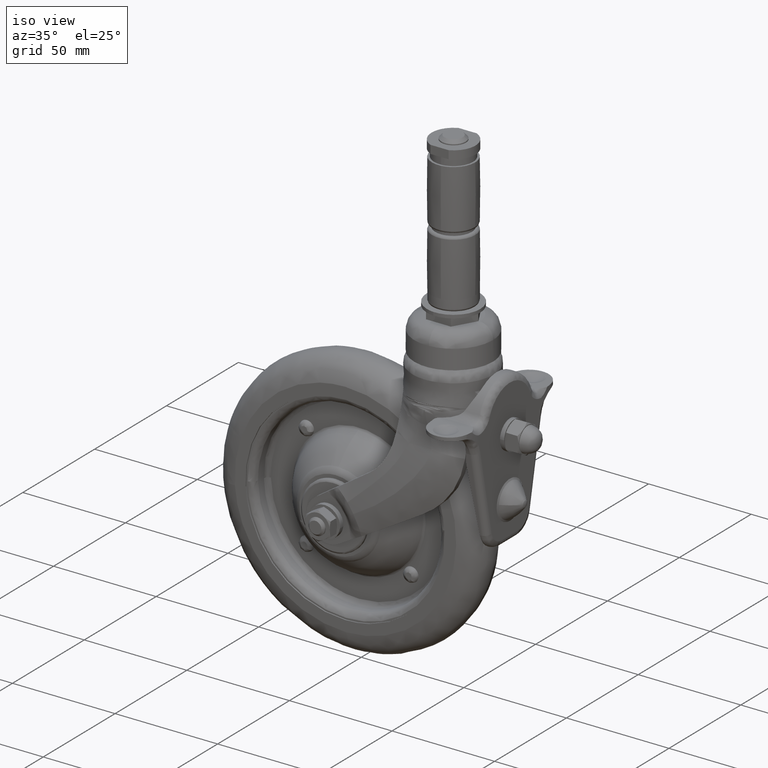
[diagram: clean part render]
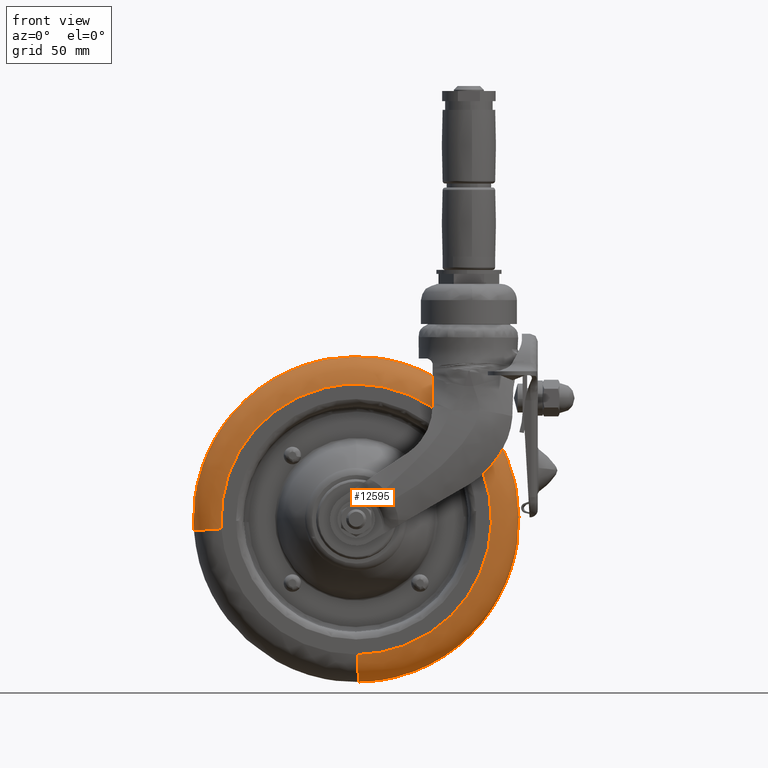
[diagram: tour spotlight — one face highlighted and labeled with its STEP entity id]
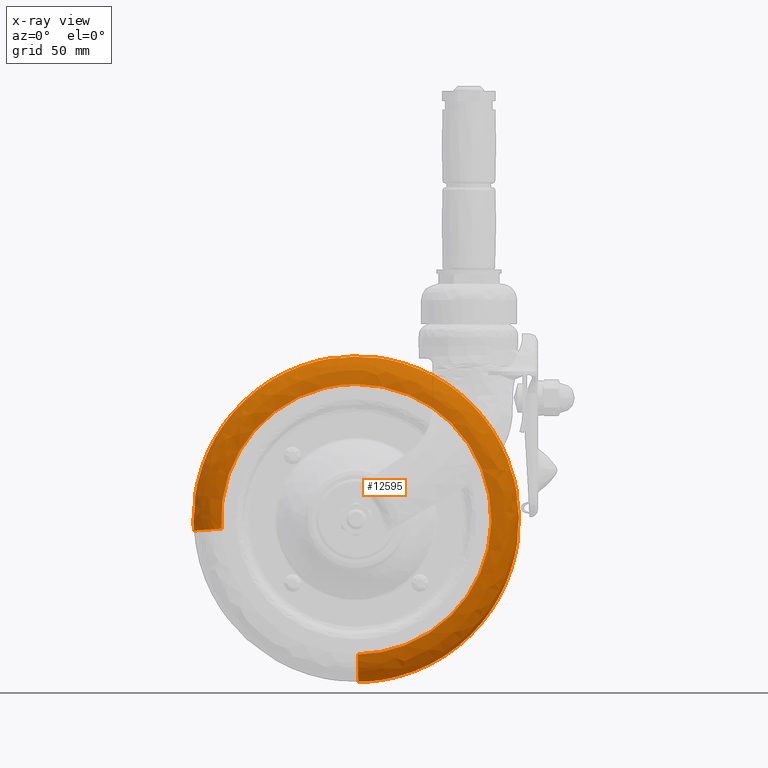
[diagram: x-ray of the same camera — body ghosted, this tour face saturated]
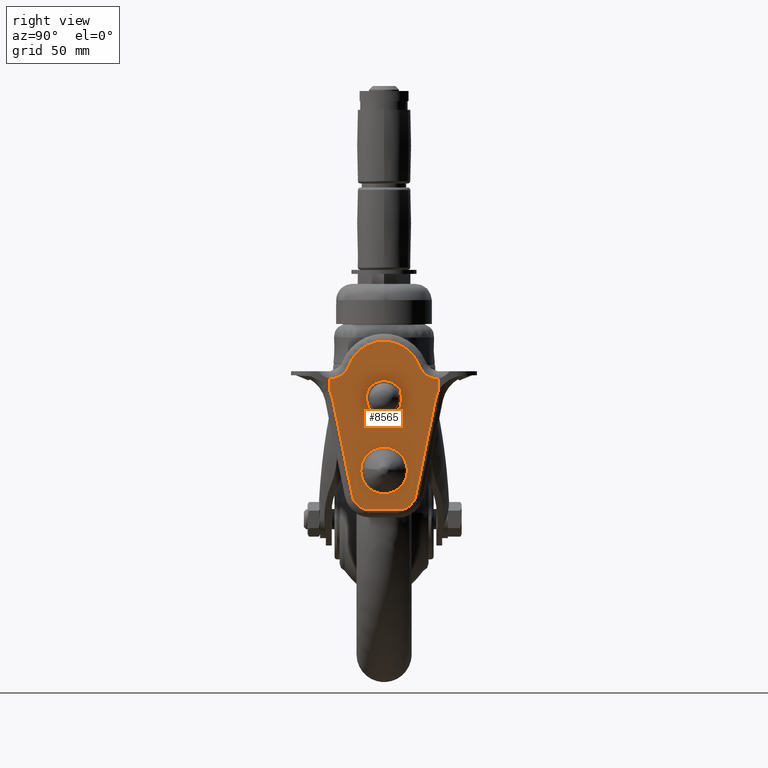
[diagram: tour spotlight — one face highlighted and labeled with its STEP entity id]
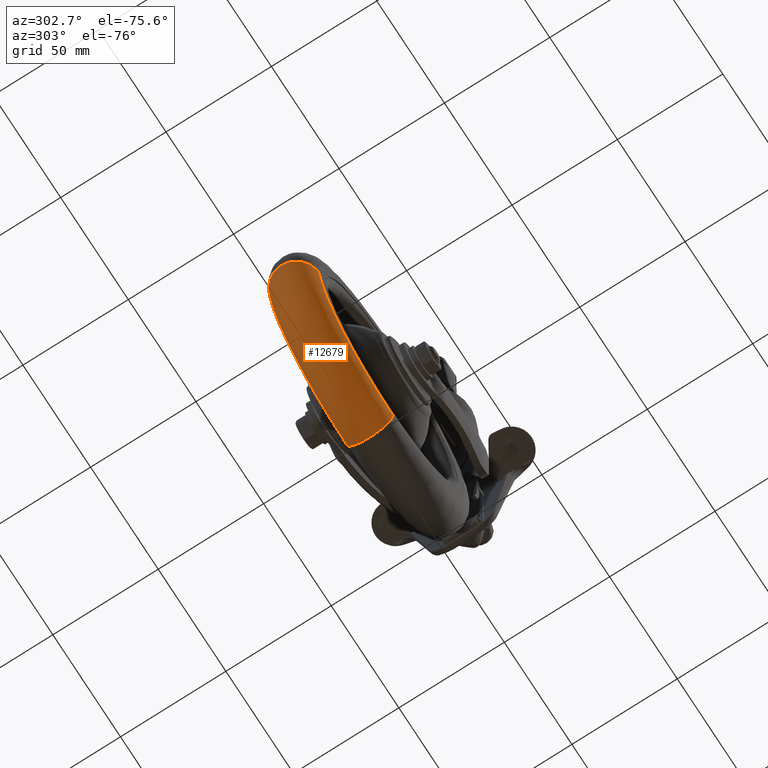
[diagram: tour spotlight — one face highlighted and labeled with its STEP entity id]
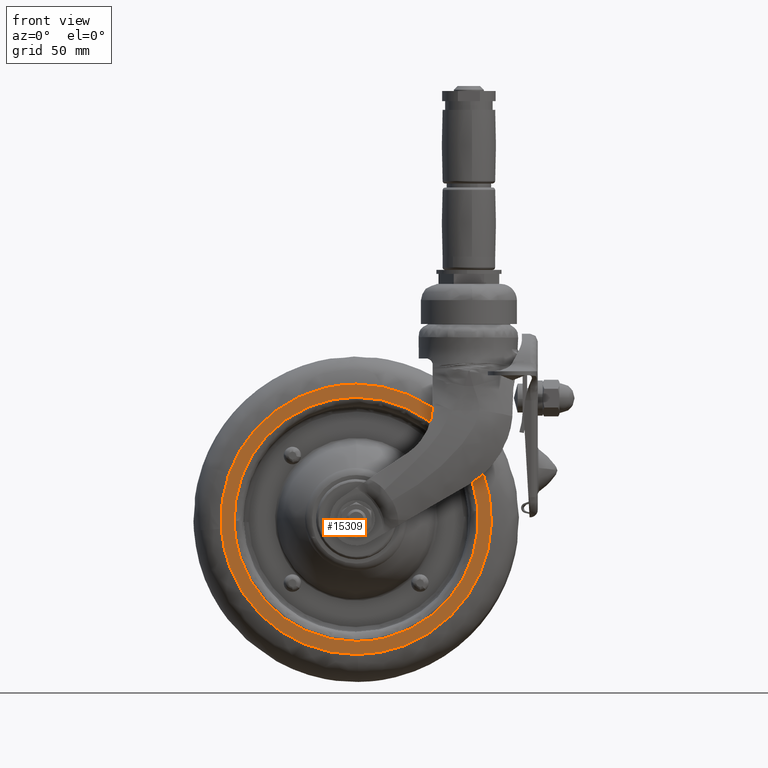
[diagram: tour spotlight — one face highlighted and labeled with its STEP entity id]
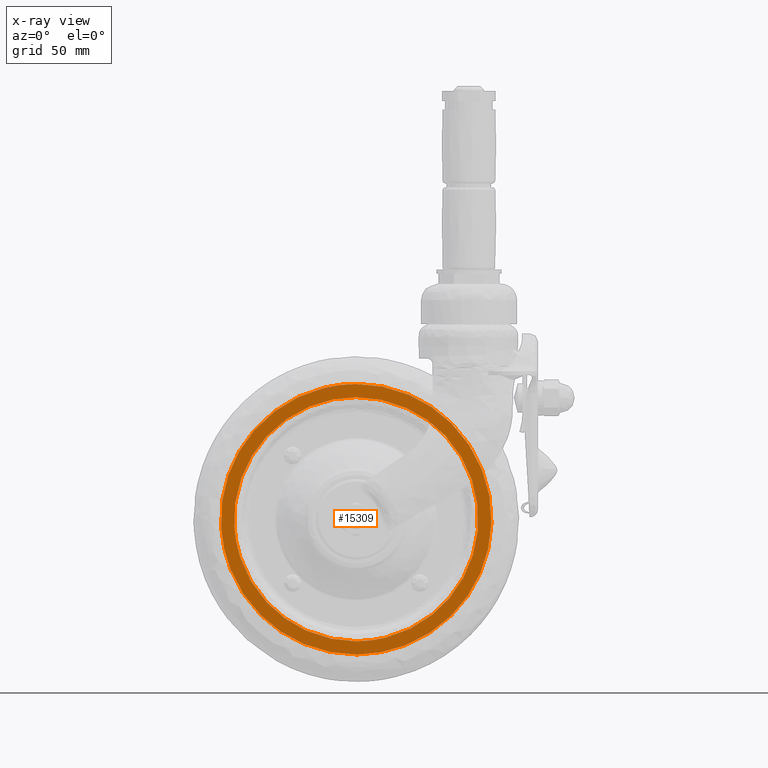
[diagram: x-ray of the same camera — body ghosted, this tour face saturated]
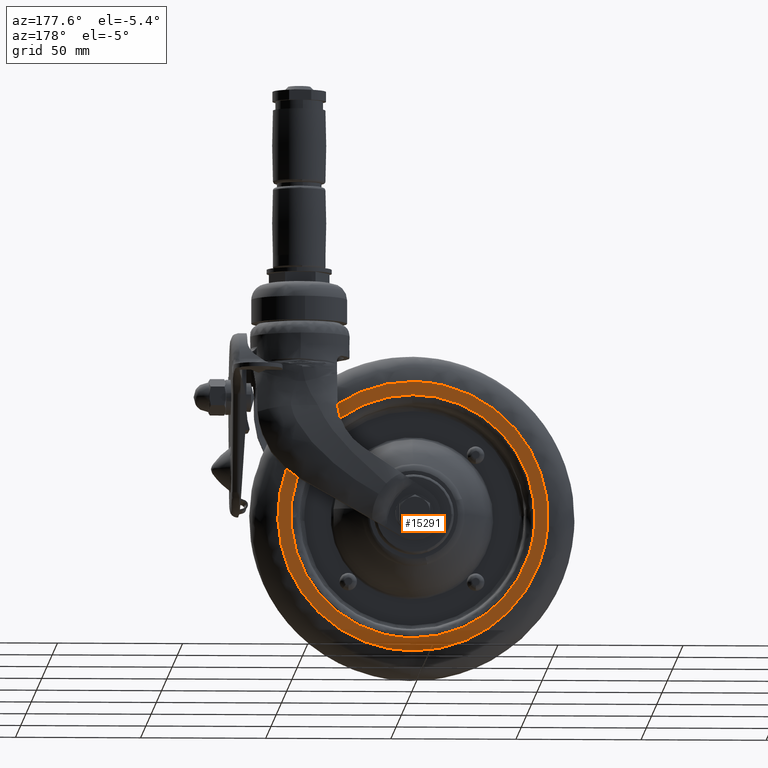
[diagram: tour spotlight — one face highlighted and labeled with its STEP entity id]
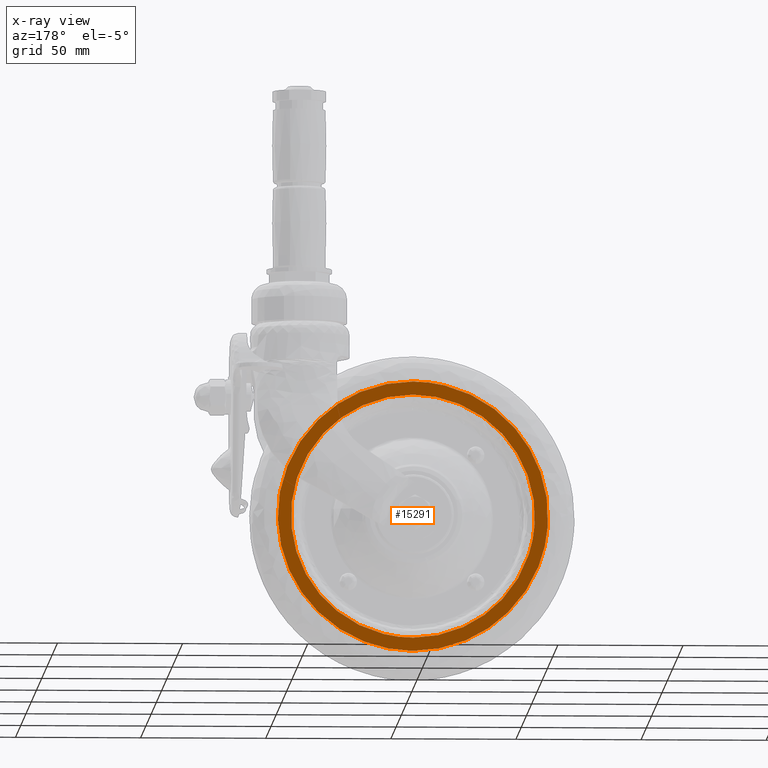
[diagram: x-ray of the same camera — body ghosted, this tour face saturated]
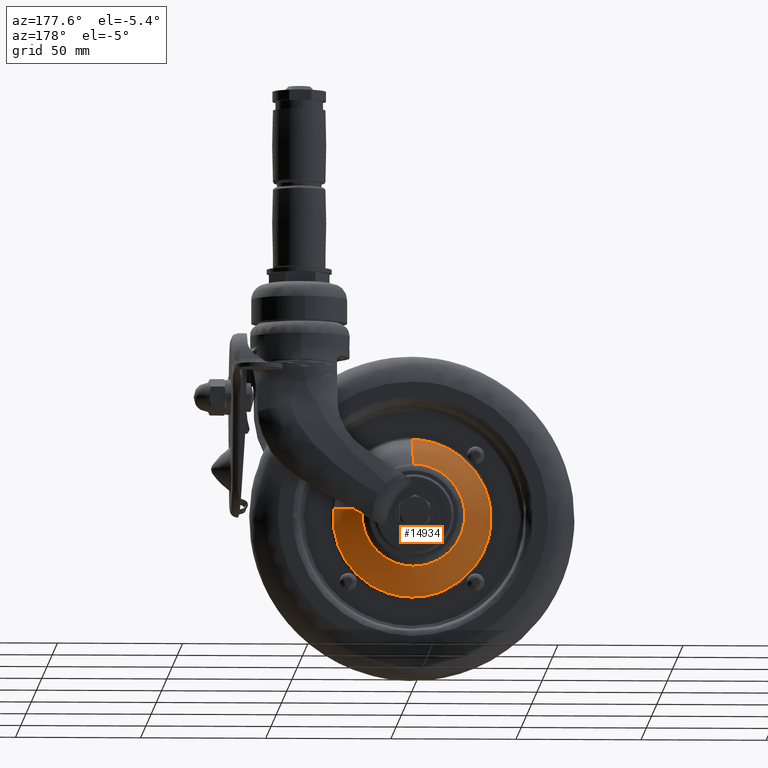
[diagram: tour spotlight — one face highlighted and labeled with its STEP entity id]
A machine part: a face-by-face anatomy tour. The part has 485 B-rep faces; the first image is the clean iso view, then the 6 largest visible faces are spotlighted one at a time (largest first), each with its STEP entity span.

Face 1 — front view, entity #12595. An x-ray twin of the same camera follows (body ghosted, this face saturated) — the face is partly hidden behind the body. In plain terms, the highlighted face is a freeform B-spline surface patch.
Definition (entity closure, byte-faithful):
#12438=CARTESIAN_POINT('',(-52.314848303068587,-10.889179296864375,-3.656983875090186));
#12439=CARTESIAN_POINT('',(-52.419509509431080,-10.889179296864370,-2.159756837430519));
#12440=CARTESIAN_POINT('',(-52.438369635726986,-10.889179296864366,-0.658994675709848));
#12441=CARTESIAN_POINT('',(-53.097364311436813,-10.889179296864368,51.779374960017122));
#12442=CARTESIAN_POINT('',(-0.658994675709851,-10.889179296864366,52.438369635726986));
#12443=CARTESIAN_POINT('',(51.779374960017122,-10.889179296864368,53.097364311436813));
#12444=CARTESIAN_POINT('',(52.438369635726986,-10.889179296864366,0.658994675709855));
#12445=CARTESIAN_POINT('',(53.097364311436813,-10.889179296864368,-51.779374960017108));
#12446=CARTESIAN_POINT('',(0.658994675709812,-10.889179296864366,-52.438369635726986));
#12447=CARTESIAN_POINT('',(-64.841769049782854,-12.685289056182535,-4.532657773824969));
#12448=CARTESIAN_POINT('',(-64.971491642728424,-12.685289056182540,-2.676915992283299));
#12449=CARTESIAN_POINT('',(-64.994867873248012,-12.685289056182539,-0.816792592417938));
#12450=CARTESIAN_POINT('',(-65.811660465665938,-12.685289056182540,64.178075280830072));
#12451=CARTESIAN_POINT('',(-0.816792592417942,-12.685289056182539,64.994867873248012));
#12452=CARTESIAN_POINT('',(64.178075280830072,-12.685289056182540,65.811660465665966));
#12453=CARTESIAN_POINT('',(64.994867873248012,-12.685289056182539,0.816792592417946));
#12454=CARTESIAN_POINT('',(65.811660465665966,-12.685289056182540,-64.178075280830072));
#12455=CARTESIAN_POINT('',(0.816792592417892,-12.685289056182539,-64.994867873248012));
#12456=CARTESIAN_POINT('',(-64.841769049782883,0.0,-4.532657773824970));
#12457=CARTESIAN_POINT('',(-64.971491642728466,0.0,-2.676915992283300));
#12458=CARTESIAN_POINT('',(-64.994867873248026,0.0,-0.816792592417938));
#12459=CARTESIAN_POINT('',(-65.811660465665952,0.0,64.178075280830072));
#12460=CARTESIAN_POINT('',(-0.816792592417942,0.0,64.994867873248026));
#12461=CARTESIAN_POINT('',(64.178075280830072,0.0,65.811660465665980));
#12462=CARTESIAN_POINT('',(64.994867873248026,0.0,0.816792592417946));
#12463=CARTESIAN_POINT('',(65.811660465665980,0.0,-64.178075280830043));
#12464=CARTESIAN_POINT('',(0.816792592417892,0.0,-64.994867873248026));
#12465=CARTESIAN_POINT('',(-64.841769049782883,12.685290231611473,-4.532657773824969));
#12466=CARTESIAN_POINT('',(-64.971491642728438,12.685290231611475,-2.676915992283300));
#12467=CARTESIAN_POINT('',(-64.994867873248026,12.685290231611473,-0.816792592417938));
#12468=CARTESIAN_POINT('',(-65.811660465665980,12.685290231611477,64.178075280830086));
#12469=CARTESIAN_POINT('',(-0.816792592417942,12.685290231611473,64.994867873248026));
#12470=CARTESIAN_POINT('',(64.178075280830086,12.685290231611477,65.811660465665980));
#12471=CARTESIAN_POINT('',(64.994867873248026,12.685290231611473,0.816792592417946));
#12472=CARTESIAN_POINT('',(65.811660465665980,12.685290231611477,-64.178075280830072));
#12473=CARTESIAN_POINT('',(0.816792592417892,12.685290231611473,-64.994867873248026));
#12474=CARTESIAN_POINT('',(-52.314847306665428,10.889179154000049,-3.656983805438253));
#12475=CARTESIAN_POINT('',(-52.419508511034529,10.889179154000054,-2.159756796295190));
#12476=CARTESIAN_POINT('',(-52.438368636971205,10.889179154000045,-0.658994663158452));
#12477=CARTESIAN_POINT('',(-53.097363300129651,10.889179154000049,51.779373973812753));
#12478=CARTESIAN_POINT('',(-0.658994663158456,10.889179154000045,52.438368636971205));
#12479=CARTESIAN_POINT('',(51.779373973812753,10.889179154000049,53.097363300129651));
#12480=CARTESIAN_POINT('',(52.438368636971205,10.889179154000045,0.658994663158459));
#12481=CARTESIAN_POINT('',(53.097363300129651,10.889179154000049,-51.779373973812731));
#12482=CARTESIAN_POINT('',(0.658994663158415,10.889179154000045,-52.438368636971205));
#12490=(BOUNDED_SURFACE()B_SPLINE_SURFACE(2,2,((#12438,#12447,#12456,#12465,#12474),(#12439,#12448,#12457,#12466,#12475),(#12440,#12449,#12458,#12467,#12476),(#12441,#12450,#12459,#12468,#12477),(#12442,#12451,#12460,#12469,#12478),(#12443,#12452,#12461,#12470,#12479),(#12444,#12453,#12462,#12471,#12480),(#12445,#12454,#12463,#12472,#12481),(#12446,#12455,#12464,#12473,#12482)),.UNSPECIFIED.,.F.,.F.,.U.)B_SPLINE_SURFACE_WITH_KNOTS((3,2,2,2,3),(3,2,3),(0.0,4.307816940421895,112.003343157426600,219.698869374431410,327.394395591436080),(0.0,20.084257495752489,40.168516204993367),.UNSPECIFIED.)GEOMETRIC_REPRESENTATION_ITEM()RATIONAL_B_SPLINE_SURFACE(((0.968327507356196,0.637387002854364,0.977505821353428,0.637386982304427,0.968327547346968),(0.979004763808454,0.644415146160335,0.988284282420452,0.644415125383803,0.979004804240185),(0.990610476381077,0.652054431728964,1.0,0.652054410706135,0.990610517292109),(0.700467385363496,0.461072110378291,0.707106781186548,0.461072095512906,0.700467414291964),(0.990610476381077,0.652054431728964,1.0,0.652054410706135,0.990610517292109),(0.700467385363496,0.461072110378291,0.707106781186548,0.461072095512906,0.700467414291964),(0.990610476381077,0.652054431728964,1.0,0.652054410706135,0.990610517292109),(0.700467385363496,0.461072110378291,0.707106781186548,0.461072095512906,0.700467414291964),(0.990610476381077,0.652054431728964,1.0,0.652054410706135,0.990610517292109)))REPRESENTATION_ITEM('')SURFACE());
#12491=CARTESIAN_POINT('',(-53.868546391014618,11.0,-3.765595585905555));
#12492=VERTEX_POINT('',#12491);
#12493=CARTESIAN_POINT('',(0.0,11.0,54.0));
#12494=VERTEX_POINT('',#12493);
#12495=CARTESIAN_POINT('',(-53.868546391014625,10.999999999999993,-3.765595585905555));
#12496=CARTESIAN_POINT('',(-54.0,10.999999999999996,-1.885092257811561));
#12497=CARTESIAN_POINT('',(-54.0,11.0,0.0));
#12498=CARTESIAN_POINT('',(-54.0,11.0,54.0));
#12499=CARTESIAN_POINT('',(0.0,11.0,54.0));
#12507=(BOUNDED_CURVE()B_SPLINE_CURVE(2,(#12495,#12496,#12497,#12498,#12499),.UNSPECIFIED.,.F.,.U.)B_SPLINE_CURVE_WITH_KNOTS((3,2,3),(0.737833686531463,0.750000000000000,1.0),.UNSPECIFIED.)CURVE()GEOMETRIC_REPRESENTATION_ITEM()RATIONAL_B_SPLINE_CURVE((0.972879876379301,0.985746277148427,1.0,0.707106781186548,1.0))REPRESENTATION_ITEM(''));
#12508=EDGE_CURVE('',#12492,#12494,#12507,.T.);
#12509=ORIENTED_EDGE('',*,*,#12508,.F.);
#12510=CARTESIAN_POINT('',(-53.868546392119327,-11.0,-3.765595586052125));
#12511=VERTEX_POINT('',#12510);
#12512=CARTESIAN_POINT('',(-53.868546392119320,-10.999999999999996,-3.765595586052125));
#12513=CARTESIAN_POINT('',(-64.841768799628085,-10.999999990414649,-4.532661352403753));
#12514=CARTESIAN_POINT('',(-64.841768799628085,0.0,-4.532661352403752));
#12515=CARTESIAN_POINT('',(-64.841768799628099,10.999999992639134,-4.532661352403754));
#12516=CARTESIAN_POINT('',(-53.868546391014625,10.999999999999998,-3.765595585905555));
#12524=(BOUNDED_CURVE()B_SPLINE_CURVE(2,(#12512,#12513,#12514,#12515,#12516),.UNSPECIFIED.,.F.,.U.)B_SPLINE_CURVE_WITH_KNOTS((3,2,3),(-3.793812488365995,-2.0,-0.206187511386004),.UNSPECIFIED.)CURVE()GEOMETRIC_REPRESENTATION_ITEM()RATIONAL_B_SPLINE_CURVE((0.913747049833325,0.668278775081864,0.977505800795127,0.668278775039112,0.913747049901198))REPRESENTATION_ITEM(''));
#12525=EDGE_CURVE('',#12511,#12492,#12524,.T.);
#12526=ORIENTED_EDGE('',*,*,#12525,.F.);
#12527=CARTESIAN_POINT('',(0.0,-11.0,54.0));
#12528=VERTEX_POINT('',#12527);
#12529=CARTESIAN_POINT('',(-53.868546392119327,-10.999999999999995,-3.765595586052126));
#12530=CARTESIAN_POINT('',(-54.0,-11.000000000000005,-1.885092257880824));
#12531=CARTESIAN_POINT('',(-54.0,-11.0,0.0));
#12532=CARTESIAN_POINT('',(-54.0,-11.0,54.0));
#12533=CARTESIAN_POINT('',(0.0,-11.0,54.0));
#12541=(BOUNDED_CURVE()B_SPLINE_CURVE(2,(#12529,#12530,#12531,#12532,#12533),.UNSPECIFIED.,.F.,.U.)B_SPLINE_CURVE_WITH_KNOTS((3,2,3),(0.737833686531022,0.750000000000000,1.0),.UNSPECIFIED.)CURVE()GEOMETRIC_REPRESENTATION_ITEM()RATIONAL_B_SPLINE_CURVE((0.972879876378369,0.985746277147911,1.0,0.707106781186548,1.0))REPRESENTATION_ITEM(''));
#12542=EDGE_CURVE('',#12511,#12528,#12541,.T.);
#12543=ORIENTED_EDGE('',*,*,#12542,.T.);
#12544=CARTESIAN_POINT('',(0.678566154274376,-11.0,-53.995736390602971));
#12545=VERTEX_POINT('',#12544);
#12546=CARTESIAN_POINT('',(0.0,-11.0,54.0));
#12547=CARTESIAN_POINT('',(54.0,-11.0,54.0));
#12548=CARTESIAN_POINT('',(54.0,-11.0,0.0));
#12549=CARTESIAN_POINT('',(54.0,-11.0,-53.325644213951939));
#12550=CARTESIAN_POINT('',(0.678566154274376,-11.0,-53.995736390602971));
#12558=(BOUNDED_CURVE()B_SPLINE_CURVE(2,(#12546,#12547,#12548,#12549,#12550),.UNSPECIFIED.,.F.,.U.)B_SPLINE_CURVE_WITH_KNOTS((3,2,3),(0.0,0.250000000000000,0.497784295918288),.UNSPECIFIED.)CURVE()GEOMETRIC_REPRESENTATION_ITEM()RATIONAL_B_SPLINE_CURVE((1.0,0.707106781186548,1.0,0.709702639988270,0.994854295636096))REPRESENTATION_ITEM(''));
#12559=EDGE_CURVE('',#12528,#12545,#12558,.T.);
#12560=ORIENTED_EDGE('',*,*,#12559,.T.);
#12561=CARTESIAN_POINT('',(0.678566154199037,11.0,-53.995736389655782));
#12562=VERTEX_POINT('',#12561);
#12563=CARTESIAN_POINT('',(0.678566154274376,-11.000000000000002,-53.995736390602971));
#12564=CARTESIAN_POINT('',(0.816792592417934,-10.999999992792334,-64.994867873248026));
#12565=CARTESIAN_POINT('',(0.816792592417933,0.0,-64.994867873248026));
#12566=CARTESIAN_POINT('',(0.816792592417934,10.999999994688457,-64.994867873248012));
#12567=CARTESIAN_POINT('',(0.678566154199037,10.999999999999998,-53.995736389655775));
#12575=(BOUNDED_CURVE()B_SPLINE_CURVE(2,(#12563,#12564,#12565,#12566,#12567),.UNSPECIFIED.,.F.,.U.)B_SPLINE_CURVE_WITH_KNOTS((3,2,3),(-3.793812488631075,-2.0,-0.206187511157533),.UNSPECIFIED.)CURVE()GEOMETRIC_REPRESENTATION_ITEM()RATIONAL_B_SPLINE_CURVE((0.934774043450800,0.683657093894045,1.0,0.683657093856766,0.934774043509986))REPRESENTATION_ITEM(''));
#12576=EDGE_CURVE('',#12545,#12562,#12575,.T.);
#12577=ORIENTED_EDGE('',*,*,#12576,.T.);
#12578=CARTESIAN_POINT('',(0.0,11.0,54.0));
#12579=CARTESIAN_POINT('',(54.0,11.0,54.0));
#12580=CARTESIAN_POINT('',(54.0,11.0,0.0));
#12581=CARTESIAN_POINT('',(53.999999999999993,11.0,-53.325644214077222));
#12582=CARTESIAN_POINT('',(0.678566154199037,10.999999999999996,-53.995736389655775));
#12590=(BOUNDED_CURVE()B_SPLINE_CURVE(2,(#12578,#12579,#12580,#12581,#12582),.UNSPECIFIED.,.F.,.U.)B_SPLINE_CURVE_WITH_KNOTS((3,2,3),(0.0,0.250000000000000,0.497784295918702),.UNSPECIFIED.)CURVE()GEOMETRIC_REPRESENTATION_ITEM()RATIONAL_B_SPLINE_CURVE((1.0,0.707106781186548,1.0,0.709702639987786,0.994854295637047))REPRESENTATION_ITEM(''));
#12591=EDGE_CURVE('',#12494,#12562,#12590,.T.);
#12592=ORIENTED_EDGE('',*,*,#12591,.F.);
#12593=EDGE_LOOP('',(#12509,#12526,#12543,#12560,#12577,#12592));
#12594=FACE_OUTER_BOUND('',#12593,.T.);
#12595=ADVANCED_FACE('',(#12594),#12490,.T.);

Face 2 — right view, entity #8565. In plain terms, the highlighted face is a freeform B-spline surface patch.
Definition (entity closure, byte-faithful):
#457=CARTESIAN_POINT('',(72.500000000000000,6.951066684475981,47.573760356816450));
#458=VERTEX_POINT('',#457);
#464=CARTESIAN_POINT('',(72.500000000000000,0.0,55.399999999999999));
#465=VERTEX_POINT('',#464);
#466=CARTESIAN_POINT('',(72.500000000000000,6.951066684475981,47.573760356816450));
#467=CARTESIAN_POINT('',(72.500000000000000,6.999999999999999,47.985431161844183));
#468=CARTESIAN_POINT('',(72.500000000000000,7.0,48.399999999999999));
#469=CARTESIAN_POINT('',(72.500000000000000,6.999999999999999,55.399999999999999));
#470=CARTESIAN_POINT('',(72.500000000000000,0.0,55.399999999999999));
#478=(BOUNDED_CURVE()B_SPLINE_CURVE(2,(#466,#467,#468,#469,#470),.UNSPECIFIED.,.F.,.U.)B_SPLINE_CURVE_WITH_KNOTS((3,2,3),(0.229562473487137,0.250000000000000,0.500000000000000),.UNSPECIFIED.)CURVE()GEOMETRIC_REPRESENTATION_ITEM()RATIONAL_B_SPLINE_CURVE((0.956026754132011,0.976055948300250,1.0,0.707106781186547,1.0))REPRESENTATION_ITEM(''));
#479=EDGE_CURVE('',#458,#465,#478,.T.);
#481=CARTESIAN_POINT('',(72.500000000000000,-6.986943588951144,48.827339776775453));
#482=VERTEX_POINT('',#481);
#483=CARTESIAN_POINT('',(72.500000000000000,0.0,55.399999999999999));
#484=CARTESIAN_POINT('',(72.500000000000000,-6.584942468280475,55.399999999999999));
#485=CARTESIAN_POINT('',(72.500000000000000,-6.986943588951144,48.827339776775446));
#493=(BOUNDED_CURVE()B_SPLINE_CURVE(2,(#483,#484,#485),.UNSPECIFIED.,.F.,.U.)B_SPLINE_CURVE_WITH_KNOTS((3,3),(0.500000000000000,0.739332962240415),.UNSPECIFIED.)CURVE()GEOMETRIC_REPRESENTATION_ITEM()RATIONAL_B_SPLINE_CURVE((1.0,0.719603993284985,0.976072041669873))REPRESENTATION_ITEM(''));
#494=EDGE_CURVE('',#465,#482,#493,.T.);
#568=CARTESIAN_POINT('',(72.500000000000000,0.0,41.399999999999999));
#569=VERTEX_POINT('',#568);
#570=CARTESIAN_POINT('',(72.500000000000000,-6.986943588951144,48.827339776775446));
#571=CARTESIAN_POINT('',(72.500000000000000,-7.0,48.613869343121671));
#572=CARTESIAN_POINT('',(72.500000000000000,-7.0,48.399999999999999));
#573=CARTESIAN_POINT('',(72.500000000000000,-6.999999999999999,41.399999999999991));
#574=CARTESIAN_POINT('',(72.500000000000000,0.0,41.399999999999999));
#582=(BOUNDED_CURVE()B_SPLINE_CURVE(2,(#570,#571,#572,#573,#574),.UNSPECIFIED.,.F.,.U.)B_SPLINE_CURVE_WITH_KNOTS((3,2,3),(0.739332962240415,0.750000000000000,1.0),.UNSPECIFIED.)CURVE()GEOMETRIC_REPRESENTATION_ITEM()RATIONAL_B_SPLINE_CURVE((0.976072041669872,0.987502787901562,1.0,0.707106781186547,1.0))REPRESENTATION_ITEM(''));
#583=EDGE_CURVE('',#482,#569,#582,.T.);
#585=CARTESIAN_POINT('',(72.500000000000000,0.0,41.399999999999999));
#586=CARTESIAN_POINT('',(72.500000000000000,6.217221680603500,41.399999999999991));
#587=CARTESIAN_POINT('',(72.500000000000000,6.951066684475981,47.573760356816450));
#595=(BOUNDED_CURVE()B_SPLINE_CURVE(2,(#585,#586,#587),.UNSPECIFIED.,.F.,.U.)B_SPLINE_CURVE_WITH_KNOTS((3,3),(0.0,0.229562473487138),.UNSPECIFIED.)CURVE()GEOMETRIC_REPRESENTATION_ITEM()RATIONAL_B_SPLINE_CURVE((1.0,0.731050832886298,0.956026754132012))REPRESENTATION_ITEM(''));
#596=EDGE_CURVE('',#569,#458,#595,.T.);
#1511=CARTESIAN_POINT('',(72.500000000000000,6.030503653093384,12.431796976537520));
#1512=VERTEX_POINT('',#1511);
#1526=CARTESIAN_POINT('',(72.500000000000000,7.717235808820234,24.674044866948119));
#1527=VERTEX_POINT('',#1526);
#1528=CARTESIAN_POINT('',(72.500000000000000,7.717235808820234,24.674044866948119));
#1529=CARTESIAN_POINT('',(72.500000000000000,9.291203843323350,22.326426559068889));
#1530=CARTESIAN_POINT('',(72.500000000000000,9.291203843323350,19.500000000000000));
#1531=CARTESIAN_POINT('',(72.500000000000000,9.291203843323350,15.213786127347559));
#1532=CARTESIAN_POINT('',(72.500000000000000,6.030503653093384,12.431796976537518));
#1540=(BOUNDED_CURVE()B_SPLINE_CURVE(2,(#1528,#1529,#1530,#1531,#1532),.UNSPECIFIED.,.F.,.U.)B_SPLINE_CURVE_WITH_KNOTS((3,2,3),(0.654483114639479,0.750000000000000,0.886934906569902),.UNSPECIFIED.)CURVE()GEOMETRIC_REPRESENTATION_ITEM()RATIONAL_B_SPLINE_CURVE((0.861700546315921,0.888095007982885,1.0,0.839570777787288,0.854888440012814))REPRESENTATION_ITEM(''));
#1541=EDGE_CURVE('',#1527,#1512,#1540,.T.);
#1655=CARTESIAN_POINT('',(72.500000000000000,0.0,28.791203843323348));
#1656=VERTEX_POINT('',#1655);
#1657=CARTESIAN_POINT('',(72.500000000000000,0.0,28.791203843323348));
#1658=CARTESIAN_POINT('',(72.500000000000000,4.956873708397358,28.791203843323352));
#1659=CARTESIAN_POINT('',(72.500000000000000,7.717235808820234,24.674044866948119));
#1667=(BOUNDED_CURVE()B_SPLINE_CURVE(2,(#1657,#1658,#1659),.UNSPECIFIED.,.F.,.U.)B_SPLINE_CURVE_WITH_KNOTS((3,3),(0.500000000000000,0.654483114639479),.UNSPECIFIED.)CURVE()GEOMETRIC_REPRESENTATION_ITEM()RATIONAL_B_SPLINE_CURVE((1.0,0.819011773203662,0.861700546315921))REPRESENTATION_ITEM(''));
#1668=EDGE_CURVE('',#1656,#1527,#1667,.T.);
#1670=CARTESIAN_POINT('',(72.500000000000000,0.0,10.208796156676650));
#1671=VERTEX_POINT('',#1670);
#1672=CARTESIAN_POINT('',(72.500000000000000,0.0,10.208796156676650));
#1673=CARTESIAN_POINT('',(72.500000000000000,-9.291203843323350,10.208796156676650));
#1674=CARTESIAN_POINT('',(72.500000000000000,-9.291203843323350,19.500000000000000));
#1675=CARTESIAN_POINT('',(72.500000000000000,-9.291203843323350,28.791203843323345));
#1676=CARTESIAN_POINT('',(72.500000000000000,0.0,28.791203843323348));
#1684=(BOUNDED_CURVE()B_SPLINE_CURVE(2,(#1672,#1673,#1674,#1675,#1676),.UNSPECIFIED.,.F.,.U.)B_SPLINE_CURVE_WITH_KNOTS((3,2,3),(0.0,0.250000000000000,0.500000000000000),.UNSPECIFIED.)CURVE()GEOMETRIC_REPRESENTATION_ITEM()RATIONAL_B_SPLINE_CURVE((1.0,0.707106781186548,1.0,0.707106781186548,1.0))REPRESENTATION_ITEM(''));
#1685=EDGE_CURVE('',#1671,#1656,#1684,.T.);
#1687=CARTESIAN_POINT('',(72.500000000000000,6.030503653093384,12.431796976537518));
#1688=CARTESIAN_POINT('',(72.500000000000014,3.424979846983384,10.208796156676652));
#1689=CARTESIAN_POINT('',(72.500000000000000,0.0,10.208796156676650));
#1697=(BOUNDED_CURVE()B_SPLINE_CURVE(2,(#1687,#1688,#1689),.UNSPECIFIED.,.F.,.U.)B_SPLINE_CURVE_WITH_KNOTS((3,3),(0.886934906569903,1.0),.UNSPECIFIED.)CURVE()GEOMETRIC_REPRESENTATION_ITEM()RATIONAL_B_SPLINE_CURVE((0.854888440012814,0.867536003399260,1.0))REPRESENTATION_ITEM(''));
#1698=EDGE_CURVE('',#1512,#1671,#1697,.T.);
#5412=CARTESIAN_POINT('',(72.500000000000000,12.689130987466880,9.404424730008490));
#5413=VERTEX_POINT('',#5412);
#5436=CARTESIAN_POINT('',(72.500000000000000,20.559840723339299,48.090203003072503));
#5437=VERTEX_POINT('',#5436);
#5453=CARTESIAN_POINT('',(72.500000000000000,12.689130987466880,9.404424730008490));
#5454=CARTESIAN_POINT('',(72.500000000000000,20.559840723339299,48.090203003072503));
#5455=QUASI_UNIFORM_CURVE('',1,(#5453,#5454),.UNSPECIFIED.,.F.,.U.);
#5456=EDGE_CURVE('',#5413,#5437,#5455,.T.);
#5478=CARTESIAN_POINT('',(72.500000000000000,21.699999999999999,51.548645573072697));
#5479=VERTEX_POINT('',#5478);
#5513=CARTESIAN_POINT('',(72.500000000000000,20.559840723339299,48.090203003072503));
#5514=CARTESIAN_POINT('',(72.500000000000000,20.925374614263923,49.886857743070294));
#5515=CARTESIAN_POINT('',(72.500000000000000,21.700000000000060,51.548645573072683));
#5523=(BOUNDED_CURVE()B_SPLINE_CURVE(2,(#5513,#5514,#5515),.UNSPECIFIED.,.F.,.U.)CURVE()GEOMETRIC_REPRESENTATION_ITEM()QUASI_UNIFORM_CURVE()RATIONAL_B_SPLINE_CURVE((1.0,0.993076559580997,1.0))REPRESENTATION_ITEM(''));
#5524=EDGE_CURVE('',#5437,#5479,#5523,.T.);
#5613=CARTESIAN_POINT('',(72.500000000000000,5.829657999999999,3.800000000000000));
#5614=VERTEX_POINT('',#5613);
#5644=CARTESIAN_POINT('',(72.500000000000000,5.829657999999999,3.800000000000000));
#5645=CARTESIAN_POINT('',(72.500000000000000,11.548898119720448,3.799999999999998));
#5646=CARTESIAN_POINT('',(72.500000000000000,12.689130987466900,9.404424730008486));
#5654=(BOUNDED_CURVE()B_SPLINE_CURVE(2,(#5644,#5645,#5646),.UNSPECIFIED.,.F.,.U.)CURVE()GEOMETRIC_REPRESENTATION_ITEM()QUASI_UNIFORM_CURVE()RATIONAL_B_SPLINE_CURVE((1.0,0.774392631587192,1.0))REPRESENTATION_ITEM(''));
#5655=EDGE_CURVE('',#5614,#5413,#5654,.T.);
#5674=CARTESIAN_POINT('',(72.500000000000000,-5.829657000000000,3.800000000000095));
#5675=VERTEX_POINT('',#5674);
#5697=CARTESIAN_POINT('',(72.500000000000000,-5.829657000000000,3.800000000000095));
#5698=CARTESIAN_POINT('',(72.500000000000000,5.829657999999999,3.800000000000000));
#5699=QUASI_UNIFORM_CURVE('',1,(#5697,#5698),.UNSPECIFIED.,.F.,.U.);
#5700=EDGE_CURVE('',#5675,#5614,#5699,.T.);
#5722=CARTESIAN_POINT('',(72.500000000000000,-12.689129932345860,9.404424459079721));
#5723=VERTEX_POINT('',#5722);
#5753=CARTESIAN_POINT('',(72.500000000000000,-12.689129932345830,9.404424459079731));
#5754=CARTESIAN_POINT('',(72.500000000000000,-11.548896889199730,3.800000000000000));
#5755=CARTESIAN_POINT('',(72.500000000000000,-5.829657000000000,3.800000000000000));
#5763=(BOUNDED_CURVE()B_SPLINE_CURVE(2,(#5753,#5754,#5755),.UNSPECIFIED.,.F.,.U.)CURVE()GEOMETRIC_REPRESENTATION_ITEM()QUASI_UNIFORM_CURVE()RATIONAL_B_SPLINE_CURVE((1.0,0.774392644082181,1.0))REPRESENTATION_ITEM(''));
#5764=EDGE_CURVE('',#5723,#5675,#5763,.T.);
#5783=CARTESIAN_POINT('',(72.500000000000000,-20.559841086546200,48.090203023618599));
#5784=VERTEX_POINT('',#5783);
#5806=CARTESIAN_POINT('',(72.500000000000000,-20.559841086546200,48.090203023618599));
#5807=CARTESIAN_POINT('',(72.500000000000000,-12.689129932345860,9.404424459079721));
#5808=QUASI_UNIFORM_CURVE('',1,(#5806,#5807),.UNSPECIFIED.,.F.,.U.);
#5809=EDGE_CURVE('',#5784,#5723,#5808,.T.);
#5858=CARTESIAN_POINT('',(72.500000000000000,-21.699999999999999,51.548645573072498));
#5859=VERTEX_POINT('',#5858);
#5860=CARTESIAN_POINT('',(72.500000000000000,-21.699999999999982,51.548645573072513));
#5861=CARTESIAN_POINT('',(72.500000000000000,-20.925374634087358,49.886857785597037));
#5862=CARTESIAN_POINT('',(72.500000000000000,-20.559841086546221,48.090203023618599));
#5870=(BOUNDED_CURVE()B_SPLINE_CURVE(2,(#5860,#5861,#5862),.UNSPECIFIED.,.F.,.U.)CURVE()GEOMETRIC_REPRESENTATION_ITEM()QUASI_UNIFORM_CURVE()RATIONAL_B_SPLINE_CURVE((1.0,0.993076559931682,1.0))REPRESENTATION_ITEM(''));
#5871=EDGE_CURVE('',#5859,#5784,#5870,.T.);
#5974=CARTESIAN_POINT('',(72.500000000000000,-14.063385979620080,61.317391569378998));
#5975=VERTEX_POINT('',#5974);
#6028=CARTESIAN_POINT('',(72.500000000000000,-21.699999999999999,56.101158499142898));
#6029=VERTEX_POINT('',#6028);
#6057=CARTESIAN_POINT('',(72.500000000000000,-14.063385979620080,61.317391569378998));
#6058=CARTESIAN_POINT('',(72.500000000000000,-16.034336390327535,56.004727687872709));
#6059=CARTESIAN_POINT('',(72.500000000000000,-21.699999999999999,56.101158499142777));
#6067=(BOUNDED_CURVE()B_SPLINE_CURVE(2,(#6057,#6058,#6059),.UNSPECIFIED.,.F.,.U.)CURVE()GEOMETRIC_REPRESENTATION_ITEM()QUASI_UNIFORM_CURVE()RATIONAL_B_SPLINE_CURVE((1.0,0.816033260650755,1.0))REPRESENTATION_ITEM(''));
#6068=EDGE_CURVE('',#5975,#6029,#6067,.T.);
#6096=CARTESIAN_POINT('',(72.500000000000000,14.063386419360519,61.317391319808600));
#6097=VERTEX_POINT('',#6096);
#6129=CARTESIAN_POINT('',(72.500000000000000,14.063386419360519,61.317391319808600));
#6130=CARTESIAN_POINT('',(72.500000000000000,10.434125281884333,71.099999865420571));
#6131=CARTESIAN_POINT('',(72.500000000000000,0.000000193470095,71.099999999999994));
#6132=CARTESIAN_POINT('',(72.500000000000000,-10.434124894944139,71.100000134579403));
#6133=CARTESIAN_POINT('',(72.500000000000000,-14.063385979620019,61.317391569378977));
#6141=(BOUNDED_CURVE()B_SPLINE_CURVE(2,(#6129,#6130,#6131,#6132,#6133),.UNSPECIFIED.,.F.,.U.)B_SPLINE_CURVE_WITH_KNOTS((3,2,3),(0.0,0.500000000000000,1.0),.UNSPECIFIED.)CURVE()GEOMETRIC_REPRESENTATION_ITEM()RATIONAL_B_SPLINE_CURVE((1.0,0.820922070763304,1.0,0.820922070763304,1.0))REPRESENTATION_ITEM(''));
#6142=EDGE_CURVE('',#6097,#5975,#6141,.T.);
#6208=CARTESIAN_POINT('',(72.500000000000000,21.699999999999999,56.101158482122692));
#6209=VERTEX_POINT('',#6208);
#6210=CARTESIAN_POINT('',(72.500000000000000,21.700000000000010,56.101158482122621));
#6211=CARTESIAN_POINT('',(72.500000000000000,16.034337158488455,56.004728392442367));
#6212=CARTESIAN_POINT('',(72.500000000000000,14.063386419360461,61.317391319808571));
#6220=(BOUNDED_CURVE()B_SPLINE_CURVE(2,(#6210,#6211,#6212),.UNSPECIFIED.,.F.,.U.)CURVE()GEOMETRIC_REPRESENTATION_ITEM()QUASI_UNIFORM_CURVE()RATIONAL_B_SPLINE_CURVE((1.0,0.816033298194301,1.0))REPRESENTATION_ITEM(''));
#6221=EDGE_CURVE('',#6209,#6097,#6220,.T.);
#7909=CARTESIAN_POINT('',(72.500000000000000,-21.699999999999999,51.548645573072498));
#7910=CARTESIAN_POINT('',(72.500000000000000,-21.699999999999999,56.101158499142898));
#7911=QUASI_UNIFORM_CURVE('',1,(#7909,#7910),.UNSPECIFIED.,.F.,.U.);
#7912=EDGE_CURVE('',#5859,#6029,#7911,.T.);
#7941=CARTESIAN_POINT('',(72.500000000000000,21.699999999999999,51.548645573072697));
#7942=CARTESIAN_POINT('',(72.500000000000000,21.699999999999999,56.101158482122692));
#7943=QUASI_UNIFORM_CURVE('',1,(#7941,#7942),.UNSPECIFIED.,.F.,.U.);
#7944=EDGE_CURVE('',#5479,#6209,#7943,.T.);
#8534=CARTESIAN_POINT('',(72.500000000000000,-23.867830730698682,74.461633606030858));
#8535=CARTESIAN_POINT('',(72.500000000000000,-23.867830730698682,0.438363385424517));
#8536=CARTESIAN_POINT('',(72.500000000000000,23.867831118724919,74.461633606030858));
#8537=CARTESIAN_POINT('',(72.500000000000000,23.867831118724919,0.438363385424517));
#8538=B_SPLINE_SURFACE_WITH_KNOTS('',1,1,((#8534,#8536),(#8535,#8537)),.UNSPECIFIED.,.F.,.F.,.U.,(2,2),(2,2),(0.0,74.023270220606335),(0.0,47.735661849423593),.UNSPECIFIED.);
#8539=ORIENTED_EDGE('',*,*,#6142,.T.);
#8540=ORIENTED_EDGE('',*,*,#6068,.T.);
#8541=ORIENTED_EDGE('',*,*,#7912,.F.);
#8542=ORIENTED_EDGE('',*,*,#5871,.T.);
#8543=ORIENTED_EDGE('',*,*,#5809,.T.);
#8544=ORIENTED_EDGE('',*,*,#5764,.T.);
#8545=ORIENTED_EDGE('',*,*,#5700,.T.);
#8546=ORIENTED_EDGE('',*,*,#5655,.T.);
#8547=ORIENTED_EDGE('',*,*,#5456,.T.);
#8548=ORIENTED_EDGE('',*,*,#5524,.T.);
#8549=ORIENTED_EDGE('',*,*,#7944,.T.);
#8550=ORIENTED_EDGE('',*,*,#6221,.T.);
#8551=EDGE_LOOP('',(#8539,#8540,#8541,#8542,#8543,#8544,#8545,#8546,#8547,#8548,#8549,#8550));
#8552=FACE_OUTER_BOUND('',#8551,.T.);
#8553=ORIENTED_EDGE('',*,*,#1685,.T.);
#8554=ORIENTED_EDGE('',*,*,#1668,.T.);
#8555=ORIENTED_EDGE('',*,*,#1541,.T.);
#8556=ORIENTED_EDGE('',*,*,#1698,.T.);
#8557=EDGE_LOOP('',(#8553,#8554,#8555,#8556));
#8558=FACE_BOUND('',#8557,.T.);
#8559=ORIENTED_EDGE('',*,*,#494,.F.);
#8560=ORIENTED_EDGE('',*,*,#479,.F.);
#8561=ORIENTED_EDGE('',*,*,#596,.F.);
#8562=ORIENTED_EDGE('',*,*,#583,.F.);
#8563=EDGE_LOOP('',(#8559,#8560,#8561,#8562));
#8564=FACE_BOUND('',#8563,.T.);
#8565=ADVANCED_FACE('',(#8552,#8558,#8564),#8538,.T.);

Face 3 — auxiliary view, entity #12679. In plain terms, the highlighted face is a freeform B-spline surface patch.
Definition (entity closure, byte-faithful):
#12491=CARTESIAN_POINT('',(-53.868546391014618,11.0,-3.765595585905555));
#12492=VERTEX_POINT('',#12491);
#12510=CARTESIAN_POINT('',(-53.868546392119327,-11.0,-3.765595586052125));
#12511=VERTEX_POINT('',#12510);
#12512=CARTESIAN_POINT('',(-53.868546392119320,-10.999999999999996,-3.765595586052125));
#12513=CARTESIAN_POINT('',(-64.841768799628085,-10.999999990414649,-4.532661352403753));
#12514=CARTESIAN_POINT('',(-64.841768799628085,0.0,-4.532661352403752));
#12515=CARTESIAN_POINT('',(-64.841768799628099,10.999999992639134,-4.532661352403754));
#12516=CARTESIAN_POINT('',(-53.868546391014625,10.999999999999998,-3.765595585905555));
#12524=(BOUNDED_CURVE()B_SPLINE_CURVE(2,(#12512,#12513,#12514,#12515,#12516),.UNSPECIFIED.,.F.,.U.)B_SPLINE_CURVE_WITH_KNOTS((3,2,3),(-3.793812488365995,-2.0,-0.206187511386004),.UNSPECIFIED.)CURVE()GEOMETRIC_REPRESENTATION_ITEM()RATIONAL_B_SPLINE_CURVE((0.913747049833325,0.668278775081864,0.977505800795127,0.668278775039112,0.913747049901198))REPRESENTATION_ITEM(''));
#12525=EDGE_CURVE('',#12511,#12492,#12524,.T.);
#12544=CARTESIAN_POINT('',(0.678566154274376,-11.0,-53.995736390602971));
#12545=VERTEX_POINT('',#12544);
#12561=CARTESIAN_POINT('',(0.678566154199037,11.0,-53.995736389655782));
#12562=VERTEX_POINT('',#12561);
#12563=CARTESIAN_POINT('',(0.678566154274376,-11.000000000000002,-53.995736390602971));
#12564=CARTESIAN_POINT('',(0.816792592417934,-10.999999992792334,-64.994867873248026));
#12565=CARTESIAN_POINT('',(0.816792592417933,0.0,-64.994867873248026));
#12566=CARTESIAN_POINT('',(0.816792592417934,10.999999994688457,-64.994867873248012));
#12567=CARTESIAN_POINT('',(0.678566154199037,10.999999999999998,-53.995736389655775));
#12575=(BOUNDED_CURVE()B_SPLINE_CURVE(2,(#12563,#12564,#12565,#12566,#12567),.UNSPECIFIED.,.F.,.U.)B_SPLINE_CURVE_WITH_KNOTS((3,2,3),(-3.793812488631075,-2.0,-0.206187511157533),.UNSPECIFIED.)CURVE()GEOMETRIC_REPRESENTATION_ITEM()RATIONAL_B_SPLINE_CURVE((0.934774043450800,0.683657093894045,1.0,0.683657093856766,0.934774043509986))REPRESENTATION_ITEM(''));
#12576=EDGE_CURVE('',#12545,#12562,#12575,.T.);
#12596=CARTESIAN_POINT('',(0.658994649039698,-10.889178993295440,-52.438367513495848));
#12597=CARTESIAN_POINT('',(-48.861358095111221,-10.889178993295443,-53.060691377192690));
#12598=CARTESIAN_POINT('',(-52.314845984009665,-10.889178993295443,-3.656986614313878));
#12599=CARTESIAN_POINT('',(0.816792592417934,-12.685291553822191,-64.994867873248026));
#12600=CARTESIAN_POINT('',(-60.561334459580280,-12.685291553822191,-65.766208767583365));
#12601=CARTESIAN_POINT('',(-64.841768799628070,-12.685291553822191,-4.532661352403752));
#12602=CARTESIAN_POINT('',(0.816792592417934,0.0,-64.994867873248026));
#12603=CARTESIAN_POINT('',(-60.561334459580301,0.0,-65.766208767583365));
#12604=CARTESIAN_POINT('',(-64.841768799628099,0.0,-4.532661352403752));
#12605=CARTESIAN_POINT('',(0.816792592417934,12.685290966107669,-64.994867873248026));
#12606=CARTESIAN_POINT('',(-60.561334459580301,12.685290966107672,-65.766208767583379));
#12607=CARTESIAN_POINT('',(-64.841768799628085,12.685290966107670,-4.532661352403752));
#12608=CARTESIAN_POINT('',(0.658994655315396,10.889179064727667,-52.438368012873703));
#12609=CARTESIAN_POINT('',(-48.861358560424719,10.889179064727662,-53.060691882497011));
#12610=CARTESIAN_POINT('',(-52.314846482211181,10.889179064727669,-3.656986649139869));
#12618=(BOUNDED_SURFACE()B_SPLINE_SURFACE(2,2,((#12596,#12599,#12602,#12605,#12608),(#12597,#12600,#12603,#12606,#12609),(#12598,#12601,#12604,#12607,#12610)),.UNSPECIFIED.,.F.,.F.,.U.)B_SPLINE_SURFACE_WITH_KNOTS((3,3),(3,2,3),(0.0,103.359331316071400),(0.0,20.084260082043851,40.168519557343501),.UNSPECIFIED.)GEOMETRIC_REPRESENTATION_ITEM()RATIONAL_B_SPLINE_SURFACE(((0.990610563311913,0.652054387058081,1.0,0.652054397569495,0.990610542856393),(0.712073171492041,0.468711371121882,0.718822509939086,0.468711378677723,0.712073156788153),(0.968327571966323,0.637386945783185,0.977505800795127,0.637386956058153,0.968327551970934)))REPRESENTATION_ITEM('')SURFACE());
#12619=CARTESIAN_POINT('',(0.0,11.0,-54.0));
#12620=VERTEX_POINT('',#12619);
#12621=CARTESIAN_POINT('',(0.0,11.0,-54.0));
#12622=CARTESIAN_POINT('',(-50.356989751319922,11.0,-54.000000000000007));
#12623=CARTESIAN_POINT('',(-53.868546391014618,11.0,-3.765595585905555));
#12631=(BOUNDED_CURVE()B_SPLINE_CURVE(2,(#12621,#12622,#12623),.UNSPECIFIED.,.F.,.U.)B_SPLINE_CURVE_WITH_KNOTS((3,3),(0.500000000000000,0.737833686531463),.UNSPECIFIED.)CURVE()GEOMETRIC_REPRESENTATION_ITEM()RATIONAL_B_SPLINE_CURVE((1.0,0.721360504038120,0.972879876379302))REPRESENTATION_ITEM(''));
#12632=EDGE_CURVE('',#12620,#12492,#12631,.T.);
#12633=ORIENTED_EDGE('',*,*,#12632,.F.);
#12634=CARTESIAN_POINT('',(0.678566154199037,11.0,-53.995736389655775));
#12635=CARTESIAN_POINT('',(0.339296472026722,11.000000000000002,-53.999999999999986));
#12636=CARTESIAN_POINT('',(0.0,11.0,-54.0));
#12644=(BOUNDED_CURVE()B_SPLINE_CURVE(2,(#12634,#12635,#12636),.UNSPECIFIED.,.F.,.U.)B_SPLINE_CURVE_WITH_KNOTS((3,3),(0.497784295918702,0.500000000000000),.UNSPECIFIED.)CURVE()GEOMETRIC_REPRESENTATION_ITEM()RATIONAL_B_SPLINE_CURVE((0.994854295637046,0.997404141198762,1.0))REPRESENTATION_ITEM(''));
#12645=EDGE_CURVE('',#12562,#12620,#12644,.T.);
#12646=ORIENTED_EDGE('',*,*,#12645,.F.);
#12647=ORIENTED_EDGE('',*,*,#12576,.F.);
#12648=CARTESIAN_POINT('',(0.0,-11.0,-54.0));
#12649=VERTEX_POINT('',#12648);
#12650=CARTESIAN_POINT('',(0.678566154274376,-11.000000000000002,-53.995736390602971));
#12651=CARTESIAN_POINT('',(0.339296472090156,-10.999999999999996,-53.999999999999993));
#12652=CARTESIAN_POINT('',(0.0,-11.0,-54.0));
#12660=(BOUNDED_CURVE()B_SPLINE_CURVE(2,(#12650,#12651,#12652),.UNSPECIFIED.,.F.,.U.)B_SPLINE_CURVE_WITH_KNOTS((3,3),(0.497784295918288,0.500000000000000),.UNSPECIFIED.)CURVE()GEOMETRIC_REPRESENTATION_ITEM()RATIONAL_B_SPLINE_CURVE((0.994854295636095,0.997404141198278,1.0))REPRESENTATION_ITEM(''));
#12661=EDGE_CURVE('',#12545,#12649,#12660,.T.);
#12662=ORIENTED_EDGE('',*,*,#12661,.T.);
#12663=CARTESIAN_POINT('',(0.0,-11.0,-54.0));
#12664=CARTESIAN_POINT('',(-50.356989751190227,-11.0,-54.000000000000014));
#12665=CARTESIAN_POINT('',(-53.868546392119320,-11.0,-3.765595586052125));
#12673=(BOUNDED_CURVE()B_SPLINE_CURVE(2,(#12663,#12664,#12665),.UNSPECIFIED.,.F.,.U.)B_SPLINE_CURVE_WITH_KNOTS((3,3),(0.500000000000000,0.737833686531022),.UNSPECIFIED.)CURVE()GEOMETRIC_REPRESENTATION_ITEM()RATIONAL_B_SPLINE_CURVE((1.0,0.721360504038638,0.972879876378367))REPRESENTATION_ITEM(''));
#12674=EDGE_CURVE('',#12649,#12511,#12673,.T.);
#12675=ORIENTED_EDGE('',*,*,#12674,.T.);
#12676=ORIENTED_EDGE('',*,*,#12525,.T.);
#12677=EDGE_LOOP('',(#12633,#12646,#12647,#12662,#12675,#12676));
#12678=FACE_OUTER_BOUND('',#12677,.T.);
#12679=ADVANCED_FACE('',(#12678),#12618,.T.);

Face 4 — front view, entity #15309. An x-ray twin of the same camera follows (body ghosted, this face saturated) — the face is partly hidden behind the body. In plain terms, the highlighted face is a freeform B-spline surface patch.
Definition (entity closure, byte-faithful):
#10083=CARTESIAN_POINT('',(48.409216314898757,-10.999999999994960,5.754152915684408));
#10084=VERTEX_POINT('',#10083);
#10085=CARTESIAN_POINT('',(0.0,-11.0,-48.750000000000000));
#10086=VERTEX_POINT('',#10085);
#10087=CARTESIAN_POINT('',(48.409216314898757,-10.999999999994955,5.754152915684408));
#10088=CARTESIAN_POINT('',(48.750000000000000,-11.000000000000002,2.887167736413776));
#10089=CARTESIAN_POINT('',(48.750000000000000,-11.0,0.0));
#10090=CARTESIAN_POINT('',(48.750000000000007,-11.0,-48.750000000000007));
#10091=CARTESIAN_POINT('',(0.0,-11.0,-48.750000000000000));
#10099=(BOUNDED_CURVE()B_SPLINE_CURVE(2,(#10087,#10088,#10089,#10090,#10091),.UNSPECIFIED.,.F.,.U.)B_SPLINE_CURVE_WITH_KNOTS((3,2,3),(0.229562529457057,0.250000000000000,0.500000000000000),.UNSPECIFIED.)CURVE()GEOMETRIC_REPRESENTATION_ITEM()RATIONAL_B_SPLINE_CURVE((0.956026863835373,0.976056013873089,1.0,0.707106781186547,1.0))REPRESENTATION_ITEM(''));
#10100=EDGE_CURVE('',#10084,#10086,#10099,.T.);
#10141=CARTESIAN_POINT('',(-48.659073526808228,-11.000000000016930,-2.976081906044076));
#10142=VERTEX_POINT('',#10141);
#10148=CARTESIAN_POINT('',(0.0,-11.0,-48.750000000000000));
#10149=CARTESIAN_POINT('',(-45.859453239493888,-11.0,-48.750000000000007));
#10150=CARTESIAN_POINT('',(-48.659073526808228,-11.000000000016923,-2.976081906044076));
#10158=(BOUNDED_CURVE()B_SPLINE_CURVE(2,(#10148,#10149,#10150),.UNSPECIFIED.,.F.,.U.)B_SPLINE_CURVE_WITH_KNOTS((3,3),(0.500000000000000,0.739333084212407),.UNSPECIFIED.)CURVE()GEOMETRIC_REPRESENTATION_ITEM()RATIONAL_B_SPLINE_CURVE((1.0,0.719603850385908,0.976072303079208))REPRESENTATION_ITEM(''));
#10159=EDGE_CURVE('',#10086,#10142,#10158,.T.);
#10182=CARTESIAN_POINT('',(0.0,-11.0,48.750000000000000));
#10183=VERTEX_POINT('',#10182);
#10184=CARTESIAN_POINT('',(0.0,-11.0,48.750000000000000));
#10185=CARTESIAN_POINT('',(43.298522573172924,-11.000000000000002,48.750000000000000));
#10186=CARTESIAN_POINT('',(48.409216314898757,-10.999999999994955,5.754152915684408));
#10194=(BOUNDED_CURVE()B_SPLINE_CURVE(2,(#10184,#10185,#10186),.UNSPECIFIED.,.F.,.U.)B_SPLINE_CURVE_WITH_KNOTS((3,3),(0.0,0.229562529457057),.UNSPECIFIED.)CURVE()GEOMETRIC_REPRESENTATION_ITEM()RATIONAL_B_SPLINE_CURVE((1.0,0.731050767313459,0.956026863835373))REPRESENTATION_ITEM(''));
#10195=EDGE_CURVE('',#10183,#10084,#10194,.T.);
#10197=CARTESIAN_POINT('',(-48.659073526808228,-11.000000000016923,-2.976081906044076));
#10198=CARTESIAN_POINT('',(-48.750000000000000,-11.0,-1.489429964445131));
#10199=CARTESIAN_POINT('',(-48.750000000000000,-11.0,0.0));
#10200=CARTESIAN_POINT('',(-48.750000000000007,-11.0,48.750000000000007));
#10201=CARTESIAN_POINT('',(0.0,-11.0,48.750000000000000));
#10209=(BOUNDED_CURVE()B_SPLINE_CURVE(2,(#10197,#10198,#10199,#10200,#10201),.UNSPECIFIED.,.F.,.U.)B_SPLINE_CURVE_WITH_KNOTS((3,2,3),(0.739333084212407,0.750000000000000,1.0),.UNSPECIFIED.)CURVE()GEOMETRIC_REPRESENTATION_ITEM()RATIONAL_B_SPLINE_CURVE((0.976072303079208,0.987502930800639,1.0,0.707106781186547,1.0))REPRESENTATION_ITEM(''));
#10210=EDGE_CURVE('',#10142,#10183,#10209,.T.);
#12510=CARTESIAN_POINT('',(-53.868546392119327,-11.0,-3.765595586052125));
#12511=VERTEX_POINT('',#12510);
#12527=CARTESIAN_POINT('',(0.0,-11.0,54.0));
#12528=VERTEX_POINT('',#12527);
#12529=CARTESIAN_POINT('',(-53.868546392119327,-10.999999999999995,-3.765595586052126));
#12530=CARTESIAN_POINT('',(-54.0,-11.000000000000005,-1.885092257880824));
#12531=CARTESIAN_POINT('',(-54.0,-11.0,0.0));
#12532=CARTESIAN_POINT('',(-54.0,-11.0,54.0));
#12533=CARTESIAN_POINT('',(0.0,-11.0,54.0));
#12541=(BOUNDED_CURVE()B_SPLINE_CURVE(2,(#12529,#12530,#12531,#12532,#12533),.UNSPECIFIED.,.F.,.U.)B_SPLINE_CURVE_WITH_KNOTS((3,2,3),(0.737833686531022,0.750000000000000,1.0),.UNSPECIFIED.)CURVE()GEOMETRIC_REPRESENTATION_ITEM()RATIONAL_B_SPLINE_CURVE((0.972879876378369,0.985746277147911,1.0,0.707106781186548,1.0))REPRESENTATION_ITEM(''));
#12542=EDGE_CURVE('',#12511,#12528,#12541,.T.);
#12544=CARTESIAN_POINT('',(0.678566154274376,-11.0,-53.995736390602971));
#12545=VERTEX_POINT('',#12544);
#12546=CARTESIAN_POINT('',(0.0,-11.0,54.0));
#12547=CARTESIAN_POINT('',(54.0,-11.0,54.0));
#12548=CARTESIAN_POINT('',(54.0,-11.0,0.0));
#12549=CARTESIAN_POINT('',(54.0,-11.0,-53.325644213951939));
#12550=CARTESIAN_POINT('',(0.678566154274376,-11.0,-53.995736390602971));
#12558=(BOUNDED_CURVE()B_SPLINE_CURVE(2,(#12546,#12547,#12548,#12549,#12550),.UNSPECIFIED.,.F.,.U.)B_SPLINE_CURVE_WITH_KNOTS((3,2,3),(0.0,0.250000000000000,0.497784295918288),.UNSPECIFIED.)CURVE()GEOMETRIC_REPRESENTATION_ITEM()RATIONAL_B_SPLINE_CURVE((1.0,0.707106781186548,1.0,0.709702639988270,0.994854295636096))REPRESENTATION_ITEM(''));
#12559=EDGE_CURVE('',#12528,#12545,#12558,.T.);
#12648=CARTESIAN_POINT('',(0.0,-11.0,-54.0));
#12649=VERTEX_POINT('',#12648);
#12650=CARTESIAN_POINT('',(0.678566154274376,-11.000000000000002,-53.995736390602971));
#12651=CARTESIAN_POINT('',(0.339296472090156,-10.999999999999996,-53.999999999999993));
#12652=CARTESIAN_POINT('',(0.0,-11.0,-54.0));
#12660=(BOUNDED_CURVE()B_SPLINE_CURVE(2,(#12650,#12651,#12652),.UNSPECIFIED.,.F.,.U.)B_SPLINE_CURVE_WITH_KNOTS((3,3),(0.497784295918288,0.500000000000000),.UNSPECIFIED.)CURVE()GEOMETRIC_REPRESENTATION_ITEM()RATIONAL_B_SPLINE_CURVE((0.994854295636095,0.997404141198278,1.0))REPRESENTATION_ITEM(''));
#12661=EDGE_CURVE('',#12545,#12649,#12660,.T.);
#12663=CARTESIAN_POINT('',(0.0,-11.0,-54.0));
#12664=CARTESIAN_POINT('',(-50.356989751190227,-11.0,-54.000000000000014));
#12665=CARTESIAN_POINT('',(-53.868546392119320,-11.0,-3.765595586052125));
#12673=(BOUNDED_CURVE()B_SPLINE_CURVE(2,(#12663,#12664,#12665),.UNSPECIFIED.,.F.,.U.)B_SPLINE_CURVE_WITH_KNOTS((3,3),(0.500000000000000,0.737833686531022),.UNSPECIFIED.)CURVE()GEOMETRIC_REPRESENTATION_ITEM()RATIONAL_B_SPLINE_CURVE((1.0,0.721360504038638,0.972879876378367))REPRESENTATION_ITEM(''));
#12674=EDGE_CURVE('',#12649,#12511,#12673,.T.);
#15292=CARTESIAN_POINT('',(-59.388078121883318,-11.0,-59.394599790675052));
#15293=CARTESIAN_POINT('',(-59.388078121883318,-11.0,59.394602687460782));
#15294=CARTESIAN_POINT('',(59.393176309450290,-11.0,-59.394599790675052));
#15295=CARTESIAN_POINT('',(59.393176309450290,-11.0,59.394602687460782));
#15296=B_SPLINE_SURFACE_WITH_KNOTS('',1,1,((#15292,#15294),(#15293,#15295)),.UNSPECIFIED.,.F.,.F.,.U.,(2,2),(2,2),(0.0,118.789202478135810),(0.0,118.781254431333590),.UNSPECIFIED.);
#15297=ORIENTED_EDGE('',*,*,#12542,.F.);
#15298=ORIENTED_EDGE('',*,*,#12674,.F.);
#15299=ORIENTED_EDGE('',*,*,#12661,.F.);
#15300=ORIENTED_EDGE('',*,*,#12559,.F.);
#15301=EDGE_LOOP('',(#15297,#15298,#15299,#15300));
#15302=FACE_OUTER_BOUND('',#15301,.T.);
#15303=ORIENTED_EDGE('',*,*,#10159,.T.);
#15304=ORIENTED_EDGE('',*,*,#10210,.T.);
#15305=ORIENTED_EDGE('',*,*,#10195,.T.);
#15306=ORIENTED_EDGE('',*,*,#10100,.T.);
#15307=EDGE_LOOP('',(#15303,#15304,#15305,#15306));
#15308=FACE_BOUND('',#15307,.T.);
#15309=ADVANCED_FACE('',(#15302,#15308),#15296,.F.);

Face 5 — auxiliary view, entity #15291. An x-ray twin of the same camera follows (body ghosted, this face saturated) — the face is partly hidden behind the body. In plain terms, the highlighted face is a freeform B-spline surface patch.
Definition (entity closure, byte-faithful):
#9916=CARTESIAN_POINT('',(48.409216291978566,11.0,5.754153108510607));
#9917=VERTEX_POINT('',#9916);
#9923=CARTESIAN_POINT('',(0.0,11.0,-48.750000000000000));
#9924=VERTEX_POINT('',#9923);
#9925=CARTESIAN_POINT('',(48.409216291978574,11.000000000000002,5.754153108510607));
#9926=CARTESIAN_POINT('',(48.750000000000000,11.000000000000004,2.887167833846134));
#9927=CARTESIAN_POINT('',(48.750000000000000,11.0,0.0));
#9928=CARTESIAN_POINT('',(48.750000000000007,11.0,-48.750000000000007));
#9929=CARTESIAN_POINT('',(0.0,11.0,-48.750000000000000));
#9937=(BOUNDED_CURVE()B_SPLINE_CURVE(2,(#9925,#9926,#9927,#9928,#9929),.UNSPECIFIED.,.F.,.U.)B_SPLINE_CURVE_WITH_KNOTS((3,2,3),(0.229562528783874,0.250000000000000,0.500000000000000),.UNSPECIFIED.)CURVE()GEOMETRIC_REPRESENTATION_ITEM()RATIONAL_B_SPLINE_CURVE((0.956026862515906,0.976056013084406,1.0,0.707106781186547,1.0))REPRESENTATION_ITEM(''));
#9938=EDGE_CURVE('',#9917,#9924,#9937,.T.);
#9940=CARTESIAN_POINT('',(-48.659073501435223,11.0,-2.976082320898624));
#9941=VERTEX_POINT('',#9940);
#9942=CARTESIAN_POINT('',(0.0,11.0,-48.750000000000000));
#9943=CARTESIAN_POINT('',(-45.859452847777590,10.999999999999998,-48.749999999999993));
#9944=CARTESIAN_POINT('',(-48.659073501435223,10.999999999999998,-2.976082320898624));
#9952=(BOUNDED_CURVE()B_SPLINE_CURVE(2,(#9942,#9943,#9944),.UNSPECIFIED.,.F.,.U.)B_SPLINE_CURVE_WITH_KNOTS((3,3),(0.500000000000000,0.739333082741317),.UNSPECIFIED.)CURVE()GEOMETRIC_REPRESENTATION_ITEM()RATIONAL_B_SPLINE_CURVE((1.0,0.719603852109397,0.976072299926381))REPRESENTATION_ITEM(''));
#9953=EDGE_CURVE('',#9924,#9941,#9952,.T.);
#10027=CARTESIAN_POINT('',(0.0,11.0,48.750000000000000));
#10028=VERTEX_POINT('',#10027);
#10029=CARTESIAN_POINT('',(-48.659073501435223,10.999999999999998,-2.976082320898624));
#10030=CARTESIAN_POINT('',(-48.750000000000007,11.0,-1.489430172453983));
#10031=CARTESIAN_POINT('',(-48.750000000000000,11.0,0.0));
#10032=CARTESIAN_POINT('',(-48.750000000000007,11.0,48.750000000000007));
#10033=CARTESIAN_POINT('',(0.0,11.0,48.750000000000000));
#10041=(BOUNDED_CURVE()B_SPLINE_CURVE(2,(#10029,#10030,#10031,#10032,#10033),.UNSPECIFIED.,.F.,.U.)B_SPLINE_CURVE_WITH_KNOTS((3,2,3),(0.739333082741317,0.750000000000000,1.0),.UNSPECIFIED.)CURVE()GEOMETRIC_REPRESENTATION_ITEM()RATIONAL_B_SPLINE_CURVE((0.976072299926381,0.987502929077151,1.0,0.707106781186547,1.0))REPRESENTATION_ITEM(''));
#10042=EDGE_CURVE('',#9941,#10028,#10041,.T.);
#10044=CARTESIAN_POINT('',(0.0,11.0,48.750000000000000));
#10045=CARTESIAN_POINT('',(43.298522399489805,11.0,48.750000000000000));
#10046=CARTESIAN_POINT('',(48.409216291978574,11.000000000000002,5.754153108510607));
#10054=(BOUNDED_CURVE()B_SPLINE_CURVE(2,(#10044,#10045,#10046),.UNSPECIFIED.,.F.,.U.)B_SPLINE_CURVE_WITH_KNOTS((3,3),(0.0,0.229562528783874),.UNSPECIFIED.)CURVE()GEOMETRIC_REPRESENTATION_ITEM()RATIONAL_B_SPLINE_CURVE((1.0,0.731050768102141,0.956026862515906))REPRESENTATION_ITEM(''));
#10055=EDGE_CURVE('',#10028,#9917,#10054,.T.);
#12491=CARTESIAN_POINT('',(-53.868546391014618,11.0,-3.765595585905555));
#12492=VERTEX_POINT('',#12491);
#12493=CARTESIAN_POINT('',(0.0,11.0,54.0));
#12494=VERTEX_POINT('',#12493);
#12495=CARTESIAN_POINT('',(-53.868546391014625,10.999999999999993,-3.765595585905555));
#12496=CARTESIAN_POINT('',(-54.0,10.999999999999996,-1.885092257811561));
#12497=CARTESIAN_POINT('',(-54.0,11.0,0.0));
#12498=CARTESIAN_POINT('',(-54.0,11.0,54.0));
#12499=CARTESIAN_POINT('',(0.0,11.0,54.0));
#12507=(BOUNDED_CURVE()B_SPLINE_CURVE(2,(#12495,#12496,#12497,#12498,#12499),.UNSPECIFIED.,.F.,.U.)B_SPLINE_CURVE_WITH_KNOTS((3,2,3),(0.737833686531463,0.750000000000000,1.0),.UNSPECIFIED.)CURVE()GEOMETRIC_REPRESENTATION_ITEM()RATIONAL_B_SPLINE_CURVE((0.972879876379301,0.985746277148427,1.0,0.707106781186548,1.0))REPRESENTATION_ITEM(''));
#12508=EDGE_CURVE('',#12492,#12494,#12507,.T.);
#12561=CARTESIAN_POINT('',(0.678566154199037,11.0,-53.995736389655782));
#12562=VERTEX_POINT('',#12561);
#12578=CARTESIAN_POINT('',(0.0,11.0,54.0));
#12579=CARTESIAN_POINT('',(54.0,11.0,54.0));
#12580=CARTESIAN_POINT('',(54.0,11.0,0.0));
#12581=CARTESIAN_POINT('',(53.999999999999993,11.0,-53.325644214077222));
#12582=CARTESIAN_POINT('',(0.678566154199037,10.999999999999996,-53.995736389655775));
#12590=(BOUNDED_CURVE()B_SPLINE_CURVE(2,(#12578,#12579,#12580,#12581,#12582),.UNSPECIFIED.,.F.,.U.)B_SPLINE_CURVE_WITH_KNOTS((3,2,3),(0.0,0.250000000000000,0.497784295918702),.UNSPECIFIED.)CURVE()GEOMETRIC_REPRESENTATION_ITEM()RATIONAL_B_SPLINE_CURVE((1.0,0.707106781186548,1.0,0.709702639987786,0.994854295637047))REPRESENTATION_ITEM(''));
#12591=EDGE_CURVE('',#12494,#12562,#12590,.T.);
#12619=CARTESIAN_POINT('',(0.0,11.0,-54.0));
#12620=VERTEX_POINT('',#12619);
#12621=CARTESIAN_POINT('',(0.0,11.0,-54.0));
#12622=CARTESIAN_POINT('',(-50.356989751319922,11.0,-54.000000000000007));
#12623=CARTESIAN_POINT('',(-53.868546391014618,11.0,-3.765595585905555));
#12631=(BOUNDED_CURVE()B_SPLINE_CURVE(2,(#12621,#12622,#12623),.UNSPECIFIED.,.F.,.U.)B_SPLINE_CURVE_WITH_KNOTS((3,3),(0.500000000000000,0.737833686531463),.UNSPECIFIED.)CURVE()GEOMETRIC_REPRESENTATION_ITEM()RATIONAL_B_SPLINE_CURVE((1.0,0.721360504038120,0.972879876379302))REPRESENTATION_ITEM(''));
#12632=EDGE_CURVE('',#12620,#12492,#12631,.T.);
#12634=CARTESIAN_POINT('',(0.678566154199037,11.0,-53.995736389655775));
#12635=CARTESIAN_POINT('',(0.339296472026722,11.000000000000002,-53.999999999999986));
#12636=CARTESIAN_POINT('',(0.0,11.0,-54.0));
#12644=(BOUNDED_CURVE()B_SPLINE_CURVE(2,(#12634,#12635,#12636),.UNSPECIFIED.,.F.,.U.)B_SPLINE_CURVE_WITH_KNOTS((3,3),(0.497784295918702,0.500000000000000),.UNSPECIFIED.)CURVE()GEOMETRIC_REPRESENTATION_ITEM()RATIONAL_B_SPLINE_CURVE((0.994854295637046,0.997404141198762,1.0))REPRESENTATION_ITEM(''));
#12645=EDGE_CURVE('',#12562,#12620,#12644,.T.);
#15274=CARTESIAN_POINT('',(-59.388078121882089,11.0,59.394599790675052));
#15275=CARTESIAN_POINT('',(-59.388078121882089,11.0,-59.394602687460782));
#15276=CARTESIAN_POINT('',(59.393176309448961,11.0,59.394599790675052));
#15277=CARTESIAN_POINT('',(59.393176309448961,11.0,-59.394602687460782));
#15278=B_SPLINE_SURFACE_WITH_KNOTS('',1,1,((#15274,#15276),(#15275,#15277)),.UNSPECIFIED.,.F.,.F.,.U.,(2,2),(2,2),(0.0,118.789202478135810),(0.0,118.781254431331010),.UNSPECIFIED.);
#15279=ORIENTED_EDGE('',*,*,#12591,.T.);
#15280=ORIENTED_EDGE('',*,*,#12645,.T.);
#15281=ORIENTED_EDGE('',*,*,#12632,.T.);
#15282=ORIENTED_EDGE('',*,*,#12508,.T.);
#15283=EDGE_LOOP('',(#15279,#15280,#15281,#15282));
#15284=FACE_OUTER_BOUND('',#15283,.T.);
#15285=ORIENTED_EDGE('',*,*,#9953,.F.);
#15286=ORIENTED_EDGE('',*,*,#9938,.F.);
#15287=ORIENTED_EDGE('',*,*,#10055,.F.);
#15288=ORIENTED_EDGE('',*,*,#10042,.F.);
#15289=EDGE_LOOP('',(#15285,#15286,#15287,#15288));
#15290=FACE_BOUND('',#15289,.T.);
#15291=ADVANCED_FACE('',(#15284,#15290),#15278,.F.);

Face 6 — auxiliary view, entity #14934. In plain terms, the highlighted face is a freeform B-spline surface patch.
Definition (entity closure, byte-faithful):
#10894=CARTESIAN_POINT('',(0.0,2.102948597014930,-31.585847141898551));
#10895=VERTEX_POINT('',#10894);
#10896=CARTESIAN_POINT('',(-13.088403805604770,2.102950570188727,-28.746468171702169));
#10897=VERTEX_POINT('',#10896);
#10898=CARTESIAN_POINT('',(0.0,2.102948597014930,-31.585847141898551));
#10899=CARTESIAN_POINT('',(-6.852187459245221,2.102948597014930,-31.585847141898551));
#10900=CARTESIAN_POINT('',(-13.088403805604766,2.102950570188726,-28.746468171702162));
#10908=(BOUNDED_CURVE()B_SPLINE_CURVE(2,(#10898,#10899,#10900),.UNSPECIFIED.,.F.,.U.)B_SPLINE_CURVE_WITH_KNOTS((3,3),(0.0,0.070375492018187),.UNSPECIFIED.)CURVE()GEOMETRIC_REPRESENTATION_ITEM()RATIONAL_B_SPLINE_CURVE((1.0,0.917549982468851,0.881519649343004))REPRESENTATION_ITEM(''));
#10909=EDGE_CURVE('',#10895,#10897,#10908,.T.);
#10911=CARTESIAN_POINT('',(31.374589587024960,2.102948596732380,3.647035498161043));
#10912=VERTEX_POINT('',#10911);
#10913=CARTESIAN_POINT('',(31.374589587024964,2.102948596732380,3.647035498161043));
#10914=CARTESIAN_POINT('',(31.585847141898540,2.102948597014930,1.829636383720819));
#10915=CARTESIAN_POINT('',(31.585847141898551,2.102948597014930,0.0));
#10916=CARTESIAN_POINT('',(31.585847141898554,2.102948597014930,-31.585847141898554));
#10917=CARTESIAN_POINT('',(0.0,2.102948597014930,-31.585847141898551));
#10925=(BOUNDED_CURVE()B_SPLINE_CURVE(2,(#10913,#10914,#10915,#10916,#10917),.UNSPECIFIED.,.F.,.U.)B_SPLINE_CURVE_WITH_KNOTS((3,2,3),(0.729999999997144,0.750000000000000,1.0),.UNSPECIFIED.)CURVE()GEOMETRIC_REPRESENTATION_ITEM()RATIONAL_B_SPLINE_CURVE((0.956886118185039,0.976568542491578,1.0,0.707106781186548,1.0))REPRESENTATION_ITEM(''));
#10926=EDGE_CURVE('',#10912,#10895,#10925,.T.);
#10928=CARTESIAN_POINT('',(0.0,2.103000405196509,31.585824728855929));
#10929=VERTEX_POINT('',#10928);
#10943=CARTESIAN_POINT('',(-28.746458539490199,2.102983539450400,13.088399420011150));
#10944=VERTEX_POINT('',#10943);
#10945=CARTESIAN_POINT('',(-28.746458539490199,2.102983539450400,13.088399420011152));
#10946=CARTESIAN_POINT('',(-20.324482067647793,2.102999557351955,31.585823919337987));
#10947=CARTESIAN_POINT('',(0.0,2.103000405196509,31.585824728855929));
#10955=(BOUNDED_CURVE()B_SPLINE_CURVE(2,(#10945,#10946,#10947),.UNSPECIFIED.,.F.,.U.)B_SPLINE_CURVE_WITH_KNOTS((3,3),(0.320375561127587,0.500000000000000),.UNSPECIFIED.)CURVE()GEOMETRIC_REPRESENTATION_ITEM()RATIONAL_B_SPLINE_CURVE((0.881519578578791,0.789556879684395,1.0))REPRESENTATION_ITEM(''));
#10956=EDGE_CURVE('',#10944,#10929,#10955,.T.);
#11096=CARTESIAN_POINT('',(-13.088403805604765,2.102950570188726,-28.746468171702173));
#11097=CARTESIAN_POINT('',(-31.585845770603132,2.102957045992341,-20.324497766962473));
#11098=CARTESIAN_POINT('',(-31.585844398069561,2.102973143338172,-0.000012231857568));
#11099=CARTESIAN_POINT('',(-31.585843935333930,2.102978570393362,6.852179791537126));
#11100=CARTESIAN_POINT('',(-28.746458539490199,2.102983539450400,13.088399420011152));
#11108=(BOUNDED_CURVE()B_SPLINE_CURVE(2,(#11096,#11097,#11098,#11099,#11100),.UNSPECIFIED.,.F.,.U.)B_SPLINE_CURVE_WITH_KNOTS((3,2,3),(0.070375492018187,0.250000000000000,0.320375561127587),.UNSPECIFIED.)CURVE()GEOMETRIC_REPRESENTATION_ITEM()RATIONAL_B_SPLINE_CURVE((0.881519649343004,0.789556798717697,1.0,0.917549901502152,0.881519578578791))REPRESENTATION_ITEM(''));
#11109=EDGE_CURVE('',#10897,#10944,#11108,.T.);
#12251=CARTESIAN_POINT('',(-5.458156873336204,15.749999894067770,-19.760023198868890));
#12252=VERTEX_POINT('',#12251);
#12266=CARTESIAN_POINT('',(-19.415517954847299,15.749992842054629,6.579344916946202));
#12267=VERTEX_POINT('',#12266);
#12268=CARTESIAN_POINT('',(-5.458156873336205,15.749999894067765,-19.760023198868886));
#12269=CARTESIAN_POINT('',(-20.499999810209598,15.749998704958765,-15.605130625948512));
#12270=CARTESIAN_POINT('',(-20.499999810209601,15.749994624630411,0.000007593415642));
#12271=CARTESIAN_POINT('',(-20.499999810209598,15.749993741099512,3.379054691701299));
#12272=CARTESIAN_POINT('',(-19.415517954847303,15.749992842054629,6.579344916946202));
#12280=(BOUNDED_CURVE()B_SPLINE_CURVE(2,(#12268,#12269,#12270,#12271,#12272),.UNSPECIFIED.,.F.,.U.)B_SPLINE_CURVE_WITH_KNOTS((3,2,3),(0.545383597337717,0.750000000000000,0.804552164574615),.UNSPECIFIED.)CURVE()GEOMETRIC_REPRESENTATION_ITEM()RATIONAL_B_SPLINE_CURVE((0.912964053291029,0.760276972808858,1.0,0.936088163697999,0.900068559493699))REPRESENTATION_ITEM(''));
#12281=EDGE_CURVE('',#12252,#12267,#12280,.T.);
#12374=CARTESIAN_POINT('',(0.0,15.749989264424009,20.500014997040878));
#12375=VERTEX_POINT('',#12374);
#12376=CARTESIAN_POINT('',(-19.415517954847303,15.749992842054636,6.579344916946203));
#12377=CARTESIAN_POINT('',(-14.698223624473028,15.749989264424016,20.500014997040882));
#12378=CARTESIAN_POINT('',(0.0,15.749989264424009,20.500014997040878));
#12386=(BOUNDED_CURVE()B_SPLINE_CURVE(2,(#12376,#12377,#12378),.UNSPECIFIED.,.F.,.U.)B_SPLINE_CURVE_WITH_KNOTS((3,3),(0.804552164574616,1.0),.UNSPECIFIED.)CURVE()GEOMETRIC_REPRESENTATION_ITEM()RATIONAL_B_SPLINE_CURVE((0.900068559493698,0.771018617488549,1.0))REPRESENTATION_ITEM(''));
#12387=EDGE_CURVE('',#12267,#12375,#12386,.T.);
#12389=CARTESIAN_POINT('',(20.362888406489610,15.749999984786911,2.367016680621883));
#12390=VERTEX_POINT('',#12389);
#12404=CARTESIAN_POINT('',(0.0,15.749999984836800,-20.499999810209601));
#12405=VERTEX_POINT('',#12404);
#12406=CARTESIAN_POINT('',(20.362888406489610,15.749999984786912,2.367016680621883));
#12407=CARTESIAN_POINT('',(20.499999810209601,15.749999984836805,1.187479486848799));
#12408=CARTESIAN_POINT('',(20.499999810209601,15.749999984836800,0.0));
#12409=CARTESIAN_POINT('',(20.499999810209594,15.749999984836798,-20.499999810209594));
#12410=CARTESIAN_POINT('',(0.0,15.749999984836800,-20.499999810209601));
#12418=(BOUNDED_CURVE()B_SPLINE_CURVE(2,(#12406,#12407,#12408,#12409,#12410),.UNSPECIFIED.,.F.,.U.)B_SPLINE_CURVE_WITH_KNOTS((3,2,3),(0.229999999978024,0.250000000000000,0.500000000000000),.UNSPECIFIED.)CURVE()GEOMETRIC_REPRESENTATION_ITEM()RATIONAL_B_SPLINE_CURVE((0.956886118147406,0.976568542469178,1.0,0.707106781186547,1.0))REPRESENTATION_ITEM(''));
#12419=EDGE_CURVE('',#12390,#12405,#12418,.T.);
#12421=CARTESIAN_POINT('',(0.0,15.749999984836800,-20.499999810209601));
#12422=CARTESIAN_POINT('',(-2.779238682379464,15.749999984836798,-20.499999810209594));
#12423=CARTESIAN_POINT('',(-5.458156873336204,15.749999894067768,-19.760023198868890));
#12431=(BOUNDED_CURVE()B_SPLINE_CURVE(2,(#12421,#12422,#12423),.UNSPECIFIED.,.F.,.U.)B_SPLINE_CURVE_WITH_KNOTS((3,3),(0.500000000000000,0.545383597337718),.UNSPECIFIED.)CURVE()GEOMETRIC_REPRESENTATION_ITEM()RATIONAL_B_SPLINE_CURVE((1.0,0.946829808377688,0.912964053291027))REPRESENTATION_ITEM(''));
#12432=EDGE_CURVE('',#12405,#12252,#12431,.T.);
#14841=CARTESIAN_POINT('',(19.608121934805538,16.270405198892067,2.279280854514846));
#14842=CARTESIAN_POINT('',(25.661292071657311,12.222432646966816,2.982911464724232));
#14843=CARTESIAN_POINT('',(29.407662579731991,5.953692111214727,3.418395831935167));
#14844=CARTESIAN_POINT('',(30.747528802150136,3.711715861707528,3.574144120247671));
#14845=CARTESIAN_POINT('',(31.713872415526644,1.282823386877181,3.686473516411926));
#14846=CARTESIAN_POINT('',(19.740151139845924,16.270405198892071,1.143464377024093));
#14847=CARTESIAN_POINT('',(25.834079654465850,12.222432646966810,1.496460163289061));
#14848=CARTESIAN_POINT('',(29.605675950181595,5.953692111214726,1.714932959070333));
#14849=CARTESIAN_POINT('',(30.954564019403545,3.711715861707528,1.793068402148818));
#14850=CARTESIAN_POINT('',(31.927414404794959,1.282823386877181,1.849421555272544));
#14851=CARTESIAN_POINT('',(19.740151139845921,16.270405198892075,0.0));
#14852=CARTESIAN_POINT('',(25.834079654465842,12.222432646966807,0.0));
#14853=CARTESIAN_POINT('',(29.605675950181599,5.953692111214727,0.0));
#14854=CARTESIAN_POINT('',(30.954564019403556,3.711715861707527,0.0));
#14855=CARTESIAN_POINT('',(31.927414404794966,1.282823386877181,0.0));
#14856=CARTESIAN_POINT('',(19.740151139845914,16.270405198892075,-19.740151139845914));
#14857=CARTESIAN_POINT('',(25.834079654465842,12.222432646966816,-25.834079654465842));
#14858=CARTESIAN_POINT('',(29.605675950181592,5.953692111214728,-29.605675950181592));
#14859=CARTESIAN_POINT('',(30.954564019403549,3.711715861707530,-30.954564019403549));
#14860=CARTESIAN_POINT('',(31.927414404794966,1.282823386877182,-31.927414404794966));
#14861=CARTESIAN_POINT('',(0.0,16.270405198892075,-19.740151139845921));
#14862=CARTESIAN_POINT('',(0.0,12.222432646966807,-25.834079654465842));
#14863=CARTESIAN_POINT('',(0.0,5.953692111214727,-29.605675950181599));
#14864=CARTESIAN_POINT('',(0.0,3.711715861707527,-30.954564019403556));
#14865=CARTESIAN_POINT('',(0.0,1.282823386877181,-31.927414404794966));
#14866=CARTESIAN_POINT('',(-19.740151139845914,16.270405198892075,-19.740151139845914));
#14867=CARTESIAN_POINT('',(-25.834079654465842,12.222432646966816,-25.834079654465842));
#14868=CARTESIAN_POINT('',(-29.605675950181592,5.953692111214728,-29.605675950181592));
#14869=CARTESIAN_POINT('',(-30.954564019403549,3.711715861707530,-30.954564019403549));
#14870=CARTESIAN_POINT('',(-31.927414404794966,1.282823386877182,-31.927414404794966));
#14871=CARTESIAN_POINT('',(-19.740151139845921,16.270405198892075,0.0));
#14872=CARTESIAN_POINT('',(-25.834079654465842,12.222432646966807,0.0));
#14873=CARTESIAN_POINT('',(-29.605675950181599,5.953692111214727,0.0));
#14874=CARTESIAN_POINT('',(-30.954564019403556,3.711715861707527,0.0));
#14875=CARTESIAN_POINT('',(-31.927414404794966,1.282823386877181,0.0));
#14876=CARTESIAN_POINT('',(-19.740151139845914,16.270405198892075,19.740151139845914));
#14877=CARTESIAN_POINT('',(-25.834079654465842,12.222432646966816,25.834079654465842));
#14878=CARTESIAN_POINT('',(-29.605675950181592,5.953692111214728,29.605675950181592));
#14879=CARTESIAN_POINT('',(-30.954564019403549,3.711715861707530,30.954564019403549));
#14880=CARTESIAN_POINT('',(-31.927414404794966,1.282823386877182,31.927414404794966));
#14881=CARTESIAN_POINT('',(0.0,16.270405198892075,19.740151139845921));
#14882=CARTESIAN_POINT('',(0.0,12.222432646966807,25.834079654465842));
#14883=CARTESIAN_POINT('',(0.0,5.953692111214727,29.605675950181599));
#14884=CARTESIAN_POINT('',(0.0,3.711715861707527,30.954564019403556));
#14885=CARTESIAN_POINT('',(0.0,1.282823386877181,31.927414404794966));
#14893=(BOUNDED_SURFACE()B_SPLINE_SURFACE(2,2,((#14841,#14846,#14851,#14856,#14861,#14866,#14871,#14876,#14881),(#14842,#14847,#14852,#14857,#14862,#14867,#14872,#14877,#14882),(#14843,#14848,#14853,#14858,#14863,#14868,#14873,#14878,#14883),(#14844,#14849,#14854,#14859,#14864,#14869,#14874,#14879,#14884),(#14845,#14850,#14855,#14860,#14865,#14870,#14875,#14880,#14885)),.UNSPECIFIED.,.F.,.F.,.U.)B_SPLINE_SURFACE_WITH_KNOTS((3,2,3),(3,2,2,2,3),(0.0,14.796435324989950,20.296088179118719),(0.0,4.231924895702587,57.130997127591350,110.030069359480090,162.929141591368900),.UNSPECIFIED.)GEOMETRIC_REPRESENTATION_ITEM()RATIONAL_B_SPLINE_SURFACE(((0.890577462983417,0.908895965110626,0.930703704871694,0.658106900990218,0.930703704871694,0.658106900990218,0.930703704871694,0.658106900990218,0.930703704871694),(0.900601051247758,0.919125730973856,0.941178920247658,0.665513996816951,0.941178920247658,0.665513996816951,0.941178920247658,0.665513996816951,0.941178920247658),(0.956886126402807,0.976568547383107,1.0,0.707106781186548,1.0,0.707106781186548,1.0,0.707106781186548,1.0),(0.935965656882793,0.955217759691643,0.978136928791454,0.691647255277420,0.978136928791454,0.691647255277420,0.978136928791454,0.691647255277420,0.978136928791454),(0.921436292192706,0.940389537003185,0.962952922785737,0.680910541665201,0.962952922785737,0.680910541665201,0.962952922785737,0.680910541665201,0.962952922785737)))REPRESENTATION_ITEM('')SURFACE());
#14894=ORIENTED_EDGE('',*,*,#12419,.F.);
#14895=CARTESIAN_POINT('',(20.362888406489599,15.749999984786909,2.367016680621884));
#14896=CARTESIAN_POINT('',(25.908287425892226,11.809139233631749,3.011623265054900));
#14897=CARTESIAN_POINT('',(29.407662495414968,5.953692111214727,3.418396557294801));
#14898=CARTESIAN_POINT('',(30.518812580130174,4.094422831169683,3.547558527404479));
#14899=CARTESIAN_POINT('',(31.374589587024960,2.102948596732380,3.647035498161042));
#14907=(BOUNDED_CURVE()B_SPLINE_CURVE(2,(#14895,#14896,#14897,#14898,#14899),.UNSPECIFIED.,.F.,.U.)B_SPLINE_CURVE_WITH_KNOTS((3,2,3),(0.204880899730078,0.333333333333333,0.375716010578347),.UNSPECIFIED.)CURVE()GEOMETRIC_REPRESENTATION_ITEM()RATIONAL_B_SPLINE_CURVE((0.892005762869091,0.904107198497116,0.956886118190660,0.939471797138394,0.926485869377723))REPRESENTATION_ITEM(''));
#14908=EDGE_CURVE('',#12390,#10912,#14907,.T.);
#14909=ORIENTED_EDGE('',*,*,#14908,.T.);
#14910=ORIENTED_EDGE('',*,*,#10926,.T.);
#14911=ORIENTED_EDGE('',*,*,#10909,.T.);
#14912=ORIENTED_EDGE('',*,*,#11109,.T.);
#14913=ORIENTED_EDGE('',*,*,#10956,.T.);
#14914=CARTESIAN_POINT('',(0.0,15.749989264424016,20.500014997040889));
#14915=CARTESIAN_POINT('',(0.0,11.809130917255562,26.082743204010072));
#14916=CARTESIAN_POINT('',(0.0,5.953692111214727,29.605675950181599));
#14917=CARTESIAN_POINT('',(0.0,4.094447123688816,30.724293233476054));
#14918=CARTESIAN_POINT('',(0.0,2.103000405196510,31.585824728855929));
#14926=(BOUNDED_CURVE()B_SPLINE_CURVE(2,(#14914,#14915,#14916,#14917,#14918),.UNSPECIFIED.,.F.,.U.)B_SPLINE_CURVE_WITH_KNOTS((3,2,3),(0.204881072105803,0.333333333333333,0.375715466899742),.UNSPECIFIED.)CURVE()GEOMETRIC_REPRESENTATION_ITEM()RATIONAL_B_SPLINE_CURVE((0.932196400794983,0.944843124104373,1.0,0.981801285092416,0.968230372380534))REPRESENTATION_ITEM(''));
#14927=EDGE_CURVE('',#12375,#10929,#14926,.T.);
#14928=ORIENTED_EDGE('',*,*,#14927,.F.);
#14929=ORIENTED_EDGE('',*,*,#12387,.F.);
#14930=ORIENTED_EDGE('',*,*,#12281,.F.);
#14931=ORIENTED_EDGE('',*,*,#12432,.F.);
#14932=EDGE_LOOP('',(#14894,#14909,#14910,#14911,#14912,#14913,#14928,#14929,#14930,#14931));
#14933=FACE_OUTER_BOUND('',#14932,.T.);
#14934=ADVANCED_FACE('',(#14933),#14893,.T.);